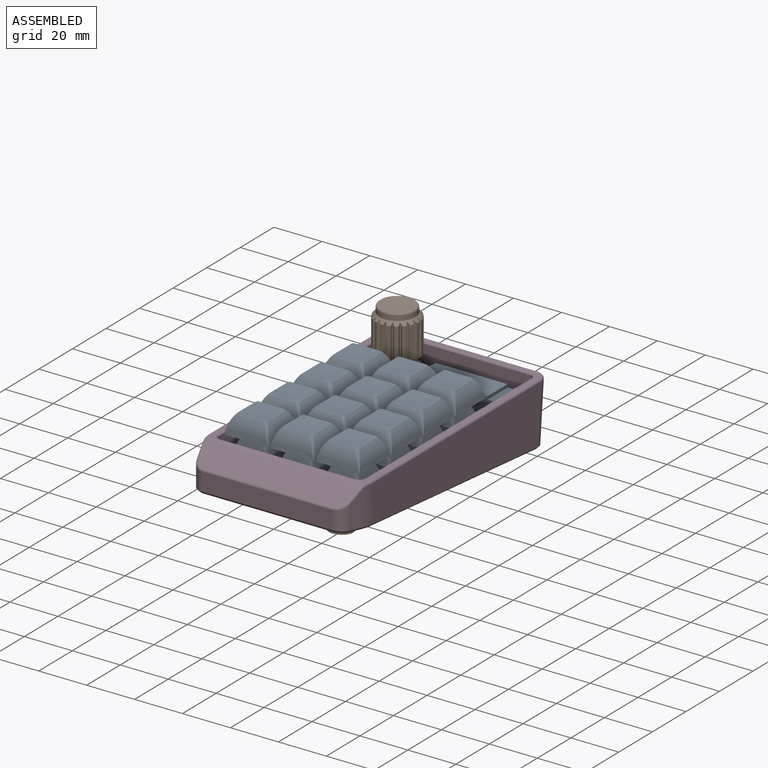
[diagram: assembled view]
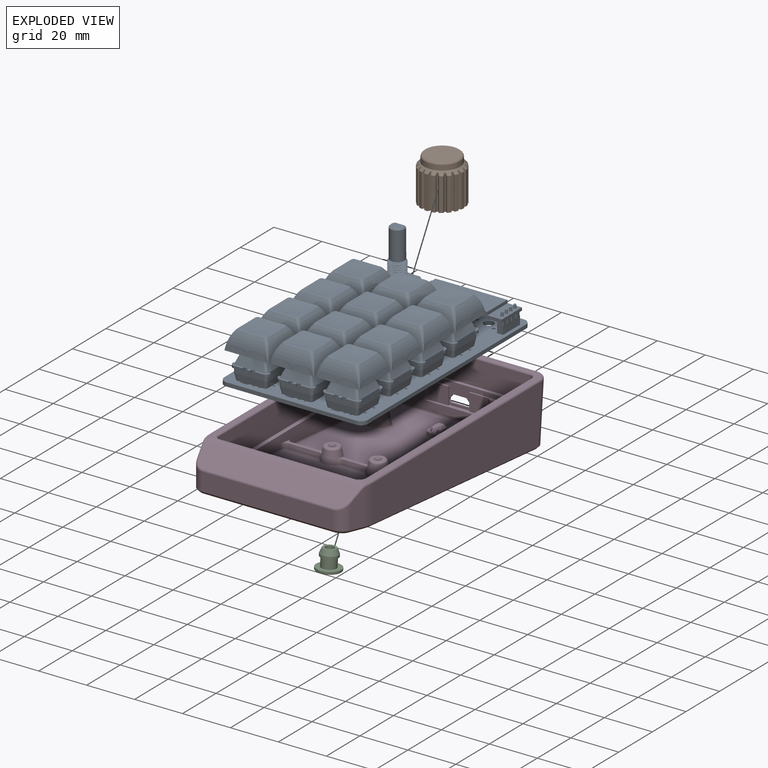
[diagram: exploded view]
GUIDED TOUR — FREECAD ASSEMBLY "keeby_cat_case_retro-hi_v1.0"

This assembly has 4 components, labeled P0..P3 below (a component is one placed body or linked part; the same part can appear more than once), held together by 0 modeled joints plus 3 derived contact edges. A joint is a constraint between two components; its type names the relative motion it leaves free:
  CONTACT — a derived adjacency edge — the two components touch in the source model (clearance under 2% of the assembly's diagonal); it is measured from the geometry, not a modeled constraint.
Axis/direction vectors are unit vectors and 'through' points are millimeter coordinates, both in the assembly's world frame.

MATES
  1. CONTACT "contact_0_1": P0 <-> P1, contact direction (-0.408, 0.890, 0.205) through (-16.53, 21.78, 14.70) mm (derived from contact, not a modeled constraint)
  2. CONTACT "contact_0_3": P0 <-> P3, contact direction (0.000, 0.000, -1.000) through (30.23, -64.06, 1.00) mm (derived from contact, not a modeled constraint)
  3. CONTACT "contact_2_3": P2 <-> P3, contact direction (-0.408, 0.890, 0.205) through (28.59, -75.23, -0.56) mm (derived from contact, not a modeled constraint)

ASSEMBLY ORDER
  1. P3 — the base component [order heuristic]
  2. P0 [order verified]
  3. P1 [order verified]
  4. P2 — core [order heuristic]
Order-tag legend:
  [order verified] — this step's position reverses a verified removal order: the component was checked to insert without passing through the ones already placed.
  [order heuristic] — the first 2 components form the assembly's core: parts whose collision-free extraction could not be verified, listed in mate-graph order.

Of the 4 components, 3 carry a construction recipe — the FreeCAD feature program (sketches with constraints, then the solid features that consume them) that regenerates the part from scratch, quoted from this document or from the linked companion document it references; the rest are supplied as boundary geometry only. The tour below walks the components in assembly order: each is shown spotlighted twice — in the assembled view, then in the exploded view, where a leader line traces a displaced component back to its assembled socket (components that stay in place when exploded have no leader line; saturated green if recipe-attached, orange if geometry-only; every other component desaturated gray) — followed by its recipe or geometry summary and the mates that hold it.
NOTE — this tour is split across 2 documents so each fits a 32k-token context. This is document 1: the component sections continue in the remaining 1 document, each repeating the header above.
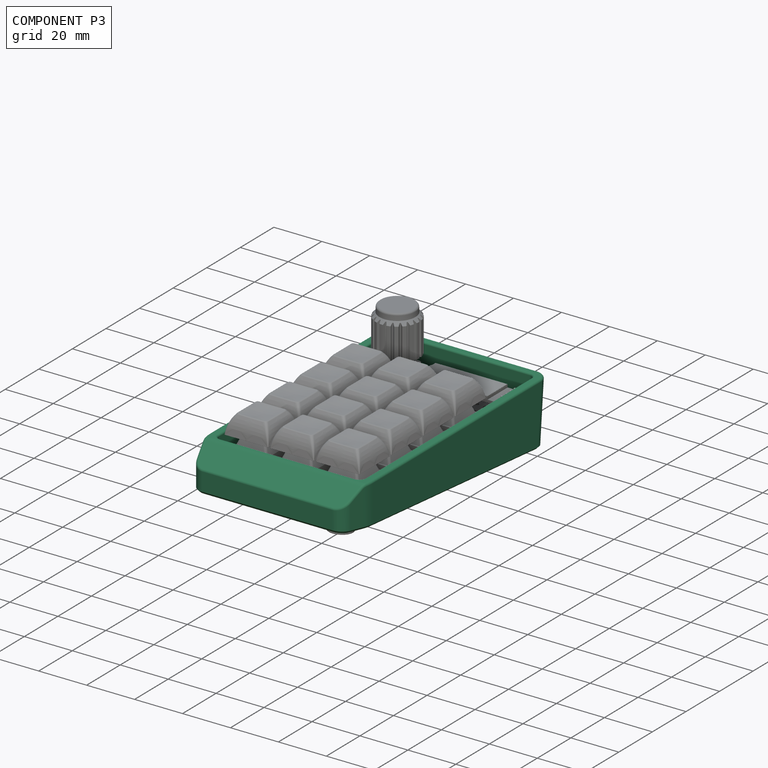
[diagram: component P3 — assembled]
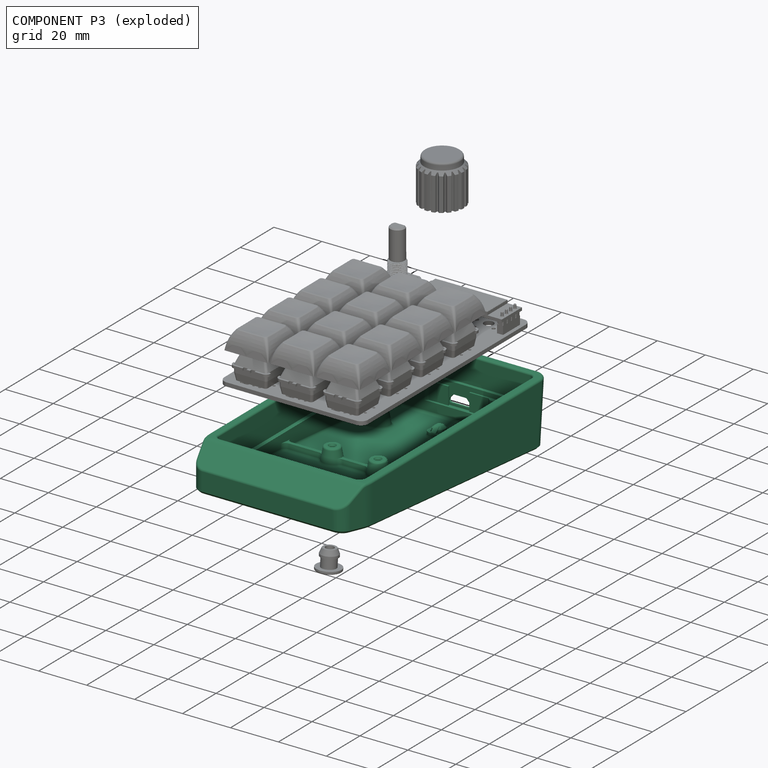
[diagram: component P3 — exploded]
COMPONENT P3 — recipe-attached ("Case", modeled in this document).
Held by: resting contact with P0 (derived edge); resting contact with P2 (derived edge).
Construction recipe (the document's own serialized feature program — sketch geometry with constraints, then the solid features built on it; lengths are millimeters unless a unit is written):

FEATURE [PartDesign::SubShapeBinder] Binder  label="PCB Top"
  BindCopyOnChange = 0
  BindMode = 0
  ClaimChildren = false
  Context = -> Assembly [Parts.Part.Body.Binder.]
  FillStyle = 0
  Fuse = false
  MakeFace = true
  OffsetFill = false
  OffsetIntersection = false
  OffsetJoinType = 0
  OffsetOpenResult = false
  PartialLoad = false
  Relative = true
  Support = -> [Link[Board_Geoms_61fa.Pcb_61fa.Face468]]
  TreeRank = 20
  _Version = 8
FEATURE [Sketcher::SketchObject] Sketch001  label="PCB Outline"
  ArcFitTolerance = 1e-06
  AttachmentSupport = -> [XY_Plane]
  ExternalGeometry = -> [Binder]
  FullyConstrained = true
  MapMode = 5
  Support = -> [XY_Plane]
  TreeRank = 19
  sketch-geometry (8):
    g0: LineSegment StartX=27 StartY=31.6315 StartZ=0 EndX=-27 EndY=31.6315 EndZ=0
    g1: LineSegment StartX=-30 StartY=28.6315 StartZ=0 EndX=-30 EndY=-65.3685 EndZ=0
    g2: LineSegment StartX=-27 StartY=-68.3685 StartZ=0 EndX=27 EndY=-68.3685 EndZ=0
    g3: LineSegment StartX=30 StartY=-65.3685 StartZ=0 EndX=30 EndY=28.6315 EndZ=0
    g4: ArcOfCircle CenterX=27 CenterY=-65.3685 CenterZ=0 NormalX=0 NormalY=0 NormalZ=1 AngleXU=0 Radius=3 StartAngle=4.71239 EndAngle=6.28319
    g5: ArcOfCircle CenterX=-27 CenterY=-65.3685 CenterZ=0 NormalX=0 NormalY=0 NormalZ=1 AngleXU=0 Radius=3 StartAngle=3.14159 EndAngle=4.71239
    g6: ArcOfCircle CenterX=-27 CenterY=28.6315 CenterZ=0 NormalX=0 NormalY=0 NormalZ=1 AngleXU=0 Radius=3 StartAngle=1.5708 EndAngle=3.14159
    g7: ArcOfCircle CenterX=27 CenterY=28.6315 CenterZ=0 NormalX=0 NormalY=0 NormalZ=1 AngleXU=0 Radius=3 StartAngle=-9e-16 EndAngle=1.5708
  constraints (16):
    c: Horizontal(g0)
    c: Horizontal(g2)
    c: Tangent(g2,g4) = -1.5708
    c: Tangent(g3,g4) = -1.5708
    c: Tangent(g1,g5) = -1.5708
    c: Tangent(g2,g5) = -1.5708
    c: Tangent(g0,g6) = -1.5708
    c: Tangent(g1,g6) = -1.5708
    c: Tangent(g0,g7) = -1.5708
    c: Tangent(g3,g7) = -1.5708
    c: Equal(g7,g6)
    c: Equal(g5,g4)
    c: Coincident(g-4,g0)
    c: Coincident(g-4,g3)
    c: Coincident(g-3,g2)
    c: Coincident(g1,g-3)
FEATURE [PartDesign::Pad] Pad  label="Simplified PCB"
  ClaimChildren = false
  Direction = (1,1,1)
  Fit = 0
  FitJoin = 0
  InnerFit = 0
  InnerFitJoin = 0
  InnerTaperAngle = 0
  InnerTaperAngleRev = 0
  Length = 1.6
  Length2 = 100
  Linearize = true
  NewSolid = false
  Profile = -> Sketch001
  Reversed = true
  Suppress = false
  TreeRank = 29
  Type = 0
  _ProfileBasedVersion = 1
  expr: Length = Spreadsheet.PCB_thickness
FEATURE [PartDesign::ShapeBinder] ShapeBinder
  Support = -> [Pad]
  TraceSupport = false
  TreeRank = 43
FEATURE [Part::SubShapeBinder] Import  label="Import(Pad)"
  BindCopyOnChange = 0
  BindMode = 0
  ClaimChildren = false
  Context = -> Assembly [Parts.Part.Body001.Import.]
  FillStyle = 0
  Fuse = false
  MakeFace = false
  OffsetFill = false
  OffsetIntersection = false
  OffsetJoinType = 0
  OffsetOpenResult = false
  PartialLoad = false
  Relative = true
  Support = -> [Body[Pad.]]
  TreeRank = 45
  _Version = 8
FEATURE [Sketcher::SketchObject] Sketch003  label="Plate Sketch"
  ArcFitTolerance = 1e-06
  AttachmentSupport = -> [ShapeBinder]
  ExternalGeometry = -> [Import]
  FullyConstrained = true
  MapMode = 5
  Support = -> [ShapeBinder]
  TreeRank = 44
  expr: Constraints[8] = Spreadsheet.Y_length
  sketch-geometry (5):
    g0: LineSegment StartX=-30 StartY=33.0627 StartZ=0 EndX=30 EndY=33.0627 EndZ=0
    g1: LineSegment StartX=30 StartY=33.0627 StartZ=0 EndX=30 EndY=-69.7998 EndZ=0
    g2: LineSegment StartX=30 StartY=-69.7998 StartZ=0 EndX=-30 EndY=-69.7998 EndZ=0
    g3: LineSegment StartX=-30 StartY=-69.7998 StartZ=0 EndX=-30 EndY=33.0627 EndZ=0
    g4: GeomPoint [constr] X=-30 Y=-18.3685 Z=0
  constraints (12):
    c: Coincident(g0,g1)
    c: Coincident(g1,g2)
    c: Coincident(g2,g3)
    c: Coincident(g3,g0)
    c: Horizontal(g0)
    c: Horizontal(g2)
    c: Vertical(g1)
    c: Vertical(g3)
    c: DistanceY(g3,g3) = 102.862
    c: Symmetric(g-3,g-3,g4)
    c: Symmetric(g0,g2,g4)
    c: PointOnObject(g-4,g1)
FEATURE [PartDesign::Pad] Pad001
  ClaimChildren = false
  Direction = (1,1,1)
  Fit = 0
  FitJoin = 0
  InnerFit = 0
  InnerFitJoin = 0
  InnerTaperAngle = 0
  InnerTaperAngleRev = 0
  Length = 4.8
  Length2 = 100
  Linearize = true
  NewSolid = false
  Profile = -> Sketch003
  Suppress = false
  TreeRank = 46
  Type = 0
  _ProfileBasedVersion = 1
  expr: Length = Spreadsheet.Plate_thk
FEATURE [PartDesign::Fillet] Fillet
  Base = -> Pad001 [Edge8,Edge5,Edge2,Edge1]
  BaseFeature = -> Pad001
  NewSolid = false
  Radius = 2
  SupportTransform = false
  Suppress = false
  TreeRank = 47
FEATURE [PartDesign::Chamfer] Chamfer
  Angle = 45
  Base = -> Fillet [Edge20,Edge11]
  BaseFeature = -> Fillet
  ChamferType = 0
  FlipDirection = false
  NewSolid = false
  Size = 0.8
  Size2 = 1
  SupportTransform = false
  Suppress = false
  TreeRank = 48
FEATURE [PartDesign::Body] Body001  label="Plate Simple"
  AutoGroupSolids = false
  ClaimAllChildren = false
  ExportMode = 0
  Group = -> [ShapeBinder,Sketch003,Import,Pad001,Fillet,Chamfer]
  Origin = -> Origin002
  Placement = pos=(0,0,0.1) rot=(0,0,1;0rad)
  Tip = -> Chamfer
  TreeRank = 41
  _ExportChildren = -> [ShapeBinder,Import,Pad001,Fillet,Chamfer]
  _GroupVersion = 1
FEATURE [Part::SubShapeBinder] Import002  label="Import002(Plate Sketch)"
  BindCopyOnChange = 0
  BindMode = 0
  ClaimChildren = false
  Context = -> Assembly [Parts.Part.Body002.Import002.]
  FillStyle = 0
  Fuse = false
  MakeFace = false
  OffsetFill = false
  OffsetIntersection = false
  OffsetJoinType = 0
  OffsetOpenResult = false
  PartialLoad = false
  Relative = true
  Support = -> [Body001[Sketch003.]]
  TreeRank = 63
  _Version = 8
FEATURE [Part::SubShapeBinder] Import003  label="Import003(Pcb_61fa)"
  BindCopyOnChange = 0
  BindMode = 0
  ClaimChildren = false
  Context = -> Assembly [Parts.Part.Body002.Import003.]
  FillStyle = 0
  Fuse = false
  MakeFace = false
  OffsetFill = false
  OffsetIntersection = false
  OffsetJoinType = 0
  OffsetOpenResult = false
  PartialLoad = false
  Relative = true
  Support = -> [Link[Board_Geoms_61fa.Pcb_61fa.]]
  TreeRank = 64
  _Version = 8
FEATURE [Sketcher::SketchObject] Sketch005
  ArcFitTolerance = 1e-06
  AttachmentSupport = -> [XY_Plane002]
  ExternalGeometry = -> [Import002]
  FullyConstrained = true
  MapMode = 5
  Support = -> [XY_Plane002]
  TreeRank = 67
  sketch-geometry (8):
    g0: LineSegment StartX=-28 StartY=33.0627 StartZ=0 EndX=28 EndY=33.0627 EndZ=0
    g1: LineSegment StartX=30 StartY=31.0627 StartZ=0 EndX=30 EndY=-67.7998 EndZ=0
    g2: LineSegment StartX=28 StartY=-69.7998 StartZ=0 EndX=-28 EndY=-69.7998 EndZ=0
    g3: LineSegment StartX=-30 StartY=-67.7998 StartZ=0 EndX=-30 EndY=31.0627 EndZ=0
    g4: ArcOfCircle CenterX=28 CenterY=31.0627 CenterZ=0 NormalX=0 NormalY=0 NormalZ=1 AngleXU=0 Radius=2 StartAngle=0 EndAngle=1.5708
    g5: ArcOfCircle CenterX=-28 CenterY=31.0627 CenterZ=0 NormalX=0 NormalY=0 NormalZ=1 AngleXU=0 Radius=2 StartAngle=1.5708 EndAngle=3.14159
    g6: ArcOfCircle CenterX=-28 CenterY=-67.7998 CenterZ=0 NormalX=0 NormalY=0 NormalZ=1 AngleXU=0 Radius=2 StartAngle=3.14159 EndAngle=4.71239
    g7: ArcOfCircle CenterX=28 CenterY=-67.7998 CenterZ=0 NormalX=0 NormalY=0 NormalZ=1 AngleXU=0 Radius=2 StartAngle=4.71239 EndAngle=6.28319
  constraints (20):
    c: Horizontal(g0)
    c: Horizontal(g2)
    c: Vertical(g1)
    c: Vertical(g3)
    c: Tangent(g0,g4) = 1.5708
    c: Tangent(g1,g4) = 1.5708
    c: Tangent(g0,g5) = 1.5708
    c: Tangent(g3,g5) = 1.5708
    c: Tangent(g2,g6) = 1.5708
    c: Tangent(g3,g6) = 1.5708
    c: Tangent(g2,g7) = 1.5708
    c: Tangent(g1,g7) = 1.5708
    c: Equal(g7,g6)
    c: Equal(g5,g4)
    c: Equal(g4,g7)
    c: PointOnObject(g3,g-3)
    c: PointOnObject(g1,g-4)
    c: Horizontal(g0,g-3)
    c: Horizontal(g2,g-3)
    c: Radius(g5) = 2
FEATURE [Part::SubShapeBinder] Import004  label="Import004(PCB Outline)"
  BindCopyOnChange = 0
  BindMode = 0
  ClaimChildren = false
  Context = -> Assembly [Parts.Part.Body002.Import004.]
  FillStyle = 0
  Fuse = false
  MakeFace = false
  OffsetFill = false
  OffsetIntersection = false
  OffsetJoinType = 0
  OffsetOpenResult = false
  PartialLoad = false
  Relative = true
  Support = -> [Body[Sketch001.]]
  TreeRank = 112
  _Version = 8
FEATURE [Sketcher::SketchObject] Sketch008  label="USB Thinning Sketch"
  ArcFitTolerance = 1e-06
  AttachmentOffset = pos=(0,0,-50) rot=(0,0,1;0rad)
  AttachmentSupport = -> [XZ_Plane002]
  FullyConstrained = true
  MapMode = 5
  Placement = pos=(0,50,1.11e-14) rot=(1,0,0;1.5708rad)
  Support = -> [XZ_Plane002]
  TreeRank = 119
  sketch-geometry (5):
    g0: LineSegment StartX=10 StartY=-2.3 StartZ=0 EndX=-10 EndY=-2.3 EndZ=0
    g1: LineSegment StartX=-10 StartY=-2.3 StartZ=0 EndX=-10 EndY=-10.3 EndZ=0
    g2: LineSegment StartX=-10 StartY=-10.3 StartZ=0 EndX=10 EndY=-10.3 EndZ=0
    g3: LineSegment StartX=10 StartY=-10.3 StartZ=0 EndX=10 EndY=-2.3 EndZ=0
    g4: GeomPoint [constr] X=0 Y=-6.3 Z=0
  constraints (13):
    c: Coincident(g0,g1)
    c: Coincident(g1,g2)
    c: Coincident(g2,g3)
    c: Coincident(g3,g0)
    c: Horizontal(g0)
    c: Horizontal(g2)
    c: Vertical(g1)
    c: Vertical(g3)
    c: PointOnObject(g4,g-2)
    c: Symmetric(g0,g2,g4)
    c: DistanceY(g4,g-1) = 6.3
    c: DistanceY(g1,g1) = 8
    c: DistanceX(g0,g0) = 20
FEATURE [Sketcher::SketchObject] Sketch009  label="USB Cut"
  ArcFitTolerance = 1e-06
  AttachmentSupport = -> [Sketch008]
  ExternalGeometry = -> [Sketch008]
  FullyConstrained = true
  MapMode = 5
  Placement = pos=(0,50,1.11e-14) rot=(1,0,0;1.5708rad)
  Support = -> [Sketch008]
  TreeRank = 125
  sketch-geometry (12):
    g0: LineSegment [constr] StartX=4.375 StartY=-4.6 StartZ=0 EndX=-4.375 EndY=-4.6 EndZ=0
    g1: LineSegment [constr] StartX=-4.375 StartY=-4.6 StartZ=0 EndX=-4.375 EndY=-8 EndZ=0
    g2: LineSegment [constr] StartX=-4.375 StartY=-8 StartZ=0 EndX=4.375 EndY=-8 EndZ=0
    g3: LineSegment [constr] StartX=4.375 StartY=-8 StartZ=0 EndX=4.375 EndY=-4.6 EndZ=0
    g4: GeomPoint [constr] X=5e-16 Y=-6.3 Z=0
    g5: LineSegment StartX=2.7 StartY=-4.6 StartZ=0 EndX=-2.7 EndY=-4.6 EndZ=0
    g6: LineSegment StartX=-4.375 StartY=-6.5 StartZ=0 EndX=-4.375 EndY=-8 EndZ=0
    g7: LineSegment StartX=-4.375 StartY=-8 StartZ=0 EndX=4.375 EndY=-8 EndZ=0
    g8: LineSegment StartX=4.375 StartY=-8 StartZ=0 EndX=4.375 EndY=-6.5 EndZ=0
    g9: LineSegment StartX=4.375 StartY=-6.5 StartZ=0 EndX=2.7 EndY=-4.6 EndZ=0
    g10: LineSegment StartX=-2.7 StartY=-4.6 StartZ=0 EndX=-4.375 EndY=-6.5 EndZ=0
    g11: GeomPoint [constr] X=0 Y=-4.6 Z=0
  constraints (32):
    c: Coincident(g0,g1)
    c: Coincident(g1,g2)
    c: Coincident(g2,g3)
    c: Coincident(g3,g0)
    c: Horizontal(g0)
    c: Horizontal(g2)
    c: Vertical(g1)
    c: Vertical(g3)
    c: Symmetric(g-3,g-4,g4)
    c: Symmetric(g0,g2,g4)
    c: Coincident(g6,g7)
    c: Coincident(g7,g8)
    c: Horizontal(g5)
    c: Horizontal(g7)
    c: Vertical(g6)
    c: Vertical(g8)
    c: Coincident(g5,g9)
    c: Coincident(g8,g9)
    c: Coincident(g5,g10)
    c: Coincident(g6,g10)
    c: PointOnObject(g11,g-2)
    c: Symmetric(g5,g5,g11)
    c: PointOnObject(g2,g8)
    c: PointOnObject(g1,g6)
    c: PointOnObject(g2,g7)
    c: Horizontal(g6,g8)
    c: DistanceY(g6,g6) = 1.5
    c: DistanceY(g1,g1) = 3.4
    c: DistanceX(g7,g7) = 8.75
    c: DistanceX(g5,g5) = 5.4
    c: Angle(g9,g3) = 2.41905
    c: PointOnObject(g5,g0)
FEATURE [PartDesign::Pad] Pad005
  ClaimChildren = false
  Direction = (1,1,1)
  Fit = 0
  FitJoin = 0
  InnerFit = 0
  InnerFitJoin = 0
  InnerTaperAngle = 0
  InnerTaperAngleRev = 0
  Length = 68
  Length2 = 100
  Linearize = true
  Midplane = true
  NewSolid = false
  Profile = -> Import006
  Suppress = false
  TreeRank = 146
  Type = 0
  _ProfileBasedVersion = 1
  expr: Length = Spreadsheet.X_width + Spreadsheet.bezel_width * 2
FEATURE [PartDesign::Pocket] Pocket
  BaseFeature = -> Pad005
  ClaimChildren = false
  Fit = 0.5
  FitJoin = 0
  InnerFit = 0
  InnerFitJoin = 0
  InnerTaperAngle = 0
  InnerTaperAngleRev = 0
  Length = 5
  Length2 = 100
  Linearize = true
  NewSolid = false
  Profile = -> Sketch005
  Reversed = true
  Suppress = false
  TreeRank = 68
  Type = 1
  _ProfileBasedVersion = 1
FEATURE [PartDesign::Chamfer] Chamfer001  label="Chamfer Front-Sides"
  Angle = 45
  Base = -> Pocket [Edge18,Edge22]
  BaseFeature = -> Pocket
  ChamferType = 1
  FlipDirection = false
  NewSolid = false
  Size = 12
  Size2 = 3
  SupportTransform = false
  Suppress = false
  TreeRank = 75
FEATURE [PartDesign::Fillet] Fillet005  label="Fillet Front Sides"
  Base = -> Chamfer001 [Edge26,Edge15]
  BaseFeature = -> Chamfer001
  NewSolid = false
  Radius = 20
  SupportTransform = false
  Suppress = false
  TreeRank = 76
FEATURE [PartDesign::Fillet] Fillet001  label="Fillet Vert 4 Corners"
  Base = -> Fillet005 [Edge51,Edge53,Edge22,Edge16]
  BaseFeature = -> Fillet005
  NewSolid = false
  Radius = 5
  SupportTransform = false
  Suppress = false
  TreeRank = 69
FEATURE [PartDesign::Fillet] Fillet003  label="Fillet Outer Top Edge"
  Base = -> Fillet001 [Edge63]
  BaseFeature = -> Fillet001
  NewSolid = false
  Radius = 1
  SupportTransform = false
  Suppress = false
  TreeRank = 73
FEATURE [PartDesign::Fillet] Fillet004  label="Fillet Inner Top Edge"
  Base = -> Fillet003 [Edge13]
  BaseFeature = -> Fillet003
  NewSolid = false
  Radius = 0.8
  SupportTransform = false
  Suppress = false
  TreeRank = 77
FEATURE [Part::SubShapeBinder] Import005  label="Import005(Blue Pill PCB)"
  BindCopyOnChange = 0
  BindMode = 0
  ClaimChildren = false
  Context = -> Assembly [Parts.Part.Body002.Import005.]
  FillStyle = 0
  Fuse = false
  MakeFace = false
  OffsetFill = false
  OffsetIntersection = false
  OffsetJoinType = 0
  OffsetOpenResult = false
  PartialLoad = false
  Relative = true
  Support = -> [Binder001]
  TreeRank = 151
  _Version = 8
FEATURE [PartDesign::Pocket] Pocket009  label="Pocket for PCB 2"
  BaseFeature = -> Fillet004
  ClaimChildren = false
  Fit = 0.5
  FitJoin = 0
  InnerFit = 0
  InnerFitJoin = 0
  InnerTaperAngle = 0
  InnerTaperAngleRev = 0
  Length = 1.8
  Length2 = 100
  Linearize = true
  NewSolid = false
  Profile = -> Import004
  Refine = true
  Suppress = false
  TreeRank = 152
  Type = 0
  _ProfileBasedVersion = 1
FEATURE [Part::SubShapeBinder] Import008  label="Import008(Sketch)"
  BindCopyOnChange = 0
  BindMode = 0
  ClaimChildren = false
  Context = -> Assembly [Parts.Part.Body002.Import008.]
  FillStyle = 0
  Fuse = false
  MakeFace = false
  OffsetFill = false
  OffsetIntersection = false
  OffsetJoinType = 0
  OffsetOpenResult = false
  PartialLoad = false
  Relative = true
  Support = -> [Body[Sketch.]]
  TreeRank = 156
  _Version = 8
FEATURE [Part::SubShapeBinder] Import009  label="Import009(Inner)"
  BindCopyOnChange = 0
  BindMode = 0
  ClaimChildren = false
  Context = -> Assembly [Parts.Part.Body003.Import009.]
  FillStyle = 0
  Fuse = false
  MakeFace = false
  OffsetFill = false
  OffsetIntersection = false
  OffsetJoinType = 0
  OffsetOpenResult = false
  PartialLoad = false
  Relative = true
  Support = -> [Body002[Export004.]]
  TreeRank = 284
  _Version = 8
FEATURE [PartDesign::Pad] Pad009
  ClaimChildren = false
  Direction = (1,1,1)
  Fit = -0.3
  FitJoin = 0
  InnerFit = 0
  InnerFitJoin = 0
  InnerTaperAngle = 0
  InnerTaperAngleRev = 0
  Length = 4.2
  Length2 = 100
  Linearize = true
  NewSolid = false
  Profile = -> Import009
  Suppress = false
  TreeRank = 285
  Type = 0
  _ProfileBasedVersion = 1
FEATURE [PartDesign::Pad] Pad010
  BaseFeature = -> Pad009
  ClaimChildren = false
  Direction = (1,1,1)
  Fit = -0.3
  FitJoin = 0
  InnerFit = 0
  InnerFitJoin = 0
  InnerTaperAngle = 0
  InnerTaperAngleRev = 0
  Length = 1
  Length2 = 100
  Linearize = true
  NewSolid = false
  Profile = -> Import009
  Reversed = true
  Suppress = false
  TreeRank = 286
  Type = 0
  _ProfileBasedVersion = 1
FEATURE [Sketcher::SketchObject] Sketch019
  ArcFitTolerance = 1e-06
  AttachmentSupport = -> [Pad010]
  ExternalGeometry = -> [Import009]
  FullyConstrained = true
  MapMode = 5
  Placement = pos=(-1e-16,-0.597245,-6.82655) rot=(-1,0,0;0.087266rad)
  Support = -> [Pad010]
  TreeRank = 287
  sketch-geometry (5):
    g0: LineSegment StartX=4 StartY=19.7108 StartZ=0 EndX=2 EndY=19.7108 EndZ=0
    g1: LineSegment StartX=2 StartY=19.7108 StartZ=0 EndX=2 EndY=12.7108 EndZ=0
    g2: LineSegment StartX=2 StartY=12.7108 StartZ=0 EndX=4 EndY=12.7108 EndZ=0
    g3: LineSegment StartX=4 StartY=12.7108 StartZ=0 EndX=4 EndY=19.7108 EndZ=0
    g4: GeomPoint [constr] X=2 Y=16.2108 Z=0
  constraints (13):
    c: Coincident(g0,g1)
    c: Coincident(g1,g2)
    c: Coincident(g2,g3)
    c: Coincident(g3,g0)
    c: Horizontal(g0)
    c: Horizontal(g2)
    c: Vertical(g1)
    c: Vertical(g3)
    c: PointOnObject(g-4,g3)
    c: DistanceY(g1,g1) = 7
    c: Symmetric(g0,g1,g4)
    c: Symmetric(g-3,g-4,g4)
    c: DistanceY(g-4,g0) = 1
FEATURE [PartDesign::SubShapeBinder] Import010  label="Import010(Pad Button Wall Interior)"
  BindCopyOnChange = 0
  BindMode = 0
  ClaimChildren = false
  Context = -> Assembly [Parts.Part.Body003.Import010.]
  FillStyle = 0
  Fuse = false
  MakeFace = false
  OffsetFill = false
  OffsetIntersection = false
  OffsetJoinType = 0
  OffsetOpenResult = false
  PartialLoad = false
  Relative = true
  Support = -> [Body002[Fillet011.Face81]]
  TreeRank = 289
  _Version = 8
FEATURE [PartDesign::Pad] Pad011
  BaseFeature = -> Pad010
  ClaimChildren = false
  Direction = (1,1,1)
  Fit = 0
  FitJoin = 0
  InnerFit = 0
  InnerFitJoin = 0
  InnerTaperAngle = 0
  InnerTaperAngleRev = 0
  Length = 10
  Length2 = 100
  Linearize = true
  NewSolid = false
  Profile = -> Sketch019
  Suppress = false
  TreeRank = 288
  Type = 3
  UpToFace = -> Import010
  _ProfileBasedVersion = 1
FEATURE [PartDesign::Chamfer] Chamfer005
  Angle = 45
  Base = -> Pad011 [Edge32,Edge40]
  BaseFeature = -> Pad011
  ChamferType = 0
  FlipDirection = false
  NewSolid = false
  Size = 1
  Size2 = 1
  SupportTransform = false
  Suppress = false
  TreeRank = 290
FEATURE [PartDesign::Chamfer] Chamfer007
  Angle = 45
  Base = -> Chamfer005 [Edge27,Edge75]
  BaseFeature = -> Chamfer005
  ChamferType = 0
  FlipDirection = false
  NewSolid = false
  Size = 2
  Size2 = 1
  SupportTransform = false
  Suppress = false
  TreeRank = 292
FEATURE [PartDesign::Chamfer] Chamfer006
  Angle = 45
  Base = -> Chamfer007 [Edge71]
  BaseFeature = -> Chamfer007
  ChamferType = 0
  FlipDirection = false
  NewSolid = false
  Size = 0.5
  Size2 = 1
  SupportTransform = false
  Suppress = false
  TreeRank = 291
FEATURE [PartDesign::Body] Body003  label="Bootloader Button"
  AutoGroupSolids = false
  ClaimAllChildren = false
  ExportMode = 0
  Group = -> [Import009,Pad009,Pad010,Sketch019,Pad011,Chamfer005,Chamfer007,Chamfer006,Import010]
  Origin = -> Origin004
  Tip = -> Chamfer006
  TreeRank = 283
  _ExportChildren = -> [Pad009,Pad010,Pad011,Chamfer005,Chamfer007,Chamfer006,Import010]
  _GroupVersion = 1
FEATURE [PartDesign::Body] Body  label="PCB Ref + Master"
  AutoGroupSolids = false
  ClaimAllChildren = false
  ExportMode = 0
  Group = -> [Sketch,Sketch001,Binder,Pad,Export]
  Origin = -> Origin001
  Tip = -> Pad
  TreeRank = 14
  _ExportChildren = -> [Sketch,Binder,Pad]
  _GroupVersion = 1
FEATURE [Sketcher::SketchObject] Sketch  label="Master Sketch"
  ArcFitTolerance = 1e-06
  AttachmentSupport = -> [YZ_Plane]
  Exports = -> [Export]
  ExternalGeometry = -> [Pad]
  FullyConstrained = true
  MapMode = 5
  Placement = pos=(0,0,0) rot=(0.57735,0.57735,0.57735;2.0944rad)
  Support = -> [YZ_Plane]
  TreeRank = 15
  expr: Constraints[20] = Spreadsheet.floor_thk
  expr: Constraints[23] = Spreadsheet.Y_length
  expr: Constraints[35] = Spreadsheet.stopper_height
  expr: Constraints[36] = 0.4 * 2
  expr: Constraints[42] = 3 + 0.15
  expr: Constraints[49] = Spreadsheet.bezel_width
  sketch-geometry (19):
    g0: LineSegment StartX=37.0627 StartY=11 StartZ=0 EndX=-71.2998 EndY=11 EndZ=0
    g1: LineSegment StartX=-73.6837 StartY=10.2472 StartZ=0 EndX=-82.5889 EndY=4 EndZ=0
    g2: LineSegment StartX=-82.5889 StartY=4 StartZ=0 EndX=-82.5889 EndY=-5.07383 EndZ=0
    g3: LineSegment StartX=-82.5889 StartY=-5.07383 StartZ=0 EndX=34.7582 EndY=-15.3404 EndZ=0
    g4: LineSegment StartX=34.7582 StartY=-15.3404 StartZ=0 EndX=37.0627 EndY=11 EndZ=0
    g5: LineSegment StartX=-80.2976 StartY=-5.27429 StartZ=0 EndX=-79.5655 EndY=3.09374 EndZ=0
    g6: LineSegment StartX=-79.5655 StartY=3.09374 StartZ=0 EndX=-70.5998 EndY=2.30934 EndZ=0
    g7: LineSegment StartX=-70.5998 StartY=2.30934 StartZ=0 EndX=-71.3319 EndY=-6.05869 EndZ=0
    g8: LineSegment StartX=-75.8148 StartY=-5.66649 StartZ=0 EndX=-75.0827 EndY=2.70154 EndZ=0
    g9: LineSegment StartX=-68.3685 StartY=-1.6 StartZ=0 EndX=-68.3685 EndY=-5.11337 EndZ=0
    g10: LineSegment StartX=-68.3685 StartY=-5.11337 StartZ=0 EndX=31.9872 EndY=-13.8934 EndZ=0
    g11: LineSegment StartX=-69.7998 StartY=-1.6 StartZ=0 EndX=33.0627 EndY=-1.6 EndZ=0
    g12: GeomPoint [constr] X=-18.3685 Y=-1.6 Z=0
    g13: LineSegment StartX=-69.7998 StartY=-1.6 StartZ=0 EndX=-69.7998 EndY=11 EndZ=0
    g14: ArcOfCircle CenterX=-71.2998 CenterY=6.84893 CenterZ=0 NormalX=0 NormalY=0 NormalZ=1 AngleXU=0 Radius=4.15107 StartAngle=1.5708 EndAngle=2.18254
    g15: LineSegment StartX=33.0627 StartY=-1.6 StartZ=0 EndX=33.0627 EndY=11 EndZ=0
    g16: LineSegment StartX=-72.6768 StartY=-5.94103 StartZ=0 EndX=-72.3281 EndY=-1.95625 EndZ=0
    g17: LineSegment StartX=-72.3281 StartY=-1.95625 StartZ=0 EndX=-70.9833 EndY=-2.07391 EndZ=0
    g18: LineSegment StartX=33.0627 StartY=-1.6 StartZ=0 EndX=31.9872 EndY=-13.8934 EndZ=0
  constraints (56):
    c: Horizontal(g0)
    c: Coincident(g1,g2)
    c: Coincident(g2,g3)
    c: Coincident(g3,g4)
    c: Coincident(g4,g0)
    c: Angle(g3,g-1) = 0.0872665
    c: PointOnObject(g5,g3)
    c: Perpendicular(g5,g3)
    c: Coincident(g6,g5)
    c: Coincident(g7,g6)
    c: PointOnObject(g7,g3)
    c: Perpendicular(g7,g6)
    c: Perpendicular(g3,g7)
    c: Distance(g5,g7) = 9
    c: PointOnObject(g8,g3)
    c: Symmetric(g5,g6,g8)
    c: Perpendicular(g6,g8)
    c: Vertical(g9)
    c: Coincident(g9,g10)
    c: Parallel(g3,g10)
    c: Distance(g9,g3) = 1.2
    c: Horizontal(g11)
    c: Symmetric(g11,g11,g12)
    c: DistanceX(g11,g11) = 102.862
    c: Coincident(g13,g11)
    c: PointOnObject(g13,g0)
    c: Vertical(g13)
    c: Tangent(g0,g14) = -1.5708
    c: Tangent(g1,g14) = -1.5708
    c: Radius(g14) = 4.15107
    c: DistanceY(g-1,g0) = 11
    c: Coincident(g15,g11)
    c: PointOnObject(g15,g0)
    c: Vertical(g15)
    c: DistanceX(g0,g13) = 1.5
    c: Distance(g8) = 8.4
    c: DistanceX(g6,g13) = 0.8
    c: PointOnObject(g16,g3)
    c: Coincident(g16,g17)
    c: PointOnObject(g17,g7)
    c: Perpendicular(g16,g17)
    c: Perpendicular(g3,g16)
    c: Distance(g16,g8) = 3.15
    c: Distance(g16) = 4
    c: Distance(g0,g1) = 2.5
    c: Distance(g8,g2) = 6.8
    c: DistanceY(g1,g0) = 7
    c: Distance(g9,g10) = 3.5
    c: Perpendicular(g3,g4)
    c: DistanceX(g15,g0) = 4
    c: Vertical(g2)
    c: Coincident(g18,g11)
    c: Coincident(g18,g10)
    c: Perpendicular(g18,g10)
    c: Symmetric(g-3,g9,g12)
    c: Coincident(g9,g-4)
FEATURE [PartDesign::Body] Body002  label="Case Shell"
  AutoGroupSolids = false
  ClaimAllChildren = false
  ExportMode = 0
  Group = -> [DatumLine,DatumPoint,DatumPlane,DatumPlane001,DatumPlane002,Import002,Import003,Import004,Import005,Pad005,Sketch005,Pocket,Chamfer001,Fillet005,Fillet001,Fillet003,Fillet004,Pocket009,Pocket008,Sketch008,Pocket005,Sketch013,Pocket007,Pocket004,Draft,Draft001,Fillet006,Sketch009,Fillet007,Sketch012,Pad004,Draft002,Import008,Sketch014,Pocket010,Pad006,Pocket011,Sketch015,Groove,Chamfer004,Mirrored,+23 more]
  Origin = -> Origin003
  Tip = -> Boolean
  TreeRank = 60
  _ExportChildren = -> [DatumLine,DatumPoint,DatumPlane,DatumPlane001,DatumPlane002,Import002,Import003,Import005,Pad005,Pocket,Chamfer001,Fillet005,Fillet001,Fillet003,Fillet004,Pocket009,Pocket008,Pocket005,Pocket007,Pocket004,Draft,Draft001,Fillet006,Fillet007,Pad004,Draft002,Import008,Sketch014,Pocket010,Pad006,Pocket011,Groove,Chamfer004,Mirrored,Chamfer009,Fillet012,Pad007,Chamfer002,Fillet008,Fillet009,Draft003,+9 more]
  _GroupVersion = 1
FEATURE [PartDesign::Pocket] Pocket004  label="USB Thinning Pocket"
  BaseFeature = -> Pocket007
  ClaimChildren = false
  Fit = 0
  FitJoin = 0
  InnerFit = 0
  InnerFitJoin = 0
  InnerTaperAngle = 0
  InnerTaperAngleRev = 0
  Length = 0
  Length2 = 100
  Linearize = true
  NewSolid = false
  Offset = 0.8
  Profile = -> Sketch008
  Suppress = false
  TreeRank = 120
  Type = 3
  UpToFace = -> Pocket007 [Face79]
  _ProfileBasedVersion = 1
  expr: Offset = 0.4 * 2
FEATURE [PartDesign::Draft] Draft  label="USB Top-Bottom Draft"
  Angle = 45
  Base = -> Pocket004 [Face56,Face54]
  BaseFeature = -> Pocket004
  NeutralPlane = -> Pocket004 [Face76]
  NewSolid = false
  Reversed = true
  SupportTransform = false
  Suppress = false
  TreeRank = 121
FEATURE [PartDesign::Draft] Draft001  label="USB Sides Draft"
  Angle = 36
  Base = -> Draft [Face55,Face53]
  BaseFeature = -> Draft
  NeutralPlane = -> Draft [Face37]
  NewSolid = false
  Reversed = true
  SupportTransform = false
  Suppress = false
  TreeRank = 123
FEATURE [PartDesign::Fillet] Fillet006  label="USB inset fillet"
  Base = -> Draft001 [Edge159,Edge157,Edge160,Edge162]
  BaseFeature = -> Draft001
  NewSolid = false
  Radius = 2
  SupportTransform = false
  Suppress = false
  TreeRank = 124
FEATURE [PartDesign::Pocket] Pocket005  label="USB Port Hole"
  BaseFeature = -> Pocket008
  ClaimChildren = false
  Fit = 0
  FitJoin = 0
  InnerFit = 0
  InnerFitJoin = 0
  InnerTaperAngle = 0
  InnerTaperAngleRev = 0
  Length = 30
  Length2 = 100
  Linearize = true
  NewSolid = false
  Profile = -> Sketch009
  Reversed = true
  Suppress = false
  TreeRank = 126
  Type = 0
  _ProfileBasedVersion = 1
FEATURE [PartDesign::Fillet] Fillet007  label="USB Port Fillet"
  Base = -> Fillet006 [Edge94,Edge91,Edge93,Edge100,Edge98,Edge96]
  BaseFeature = -> Fillet006
  NewSolid = false
  Radius = 0.8
  SupportTransform = false
  Suppress = false
  TreeRank = 127
FEATURE [PartDesign::Plane] DatumPlane001  label="Inside Floor"
  AttachmentOffset = pos=(0,0,1.2) rot=(0,0,1;0rad)
  AttachmentSupport = -> [DatumPlane]
  Length = 68
  MapMode = 5
  MinimumLength = 10
  MinimumWidth = 10
  Placement = pos=(6.66667,-43.3686,-7.30058) rot=(0,0.043619,0.999048;3.14159rad)
  ResizeMode = 0
  Support = -> [DatumPlane]
  TreeRank = 135
  Width = 121.391
  expr: AttachmentOffset.Base.z = Spreadsheet.floor_thk
FEATURE [Sketcher::SketchObject] Sketch012  label="Screw Bosses Sketch"
  ArcFitTolerance = 1e-06
  AttachmentSupport = -> [Pocket007]
  ExternalGeometry = -> [Import003]
  FullyConstrained = true
  MapMode = 5
  Placement = pos=(0,0,-1.8) rot=(0,0,1;0rad)
  Support = -> [Pocket007]
  TreeRank = 136
  expr: Constraints[19] = Spreadsheet.screw_hole_dia_plastic
  sketch-geometry (10):
    g0: Circle CenterX=-9.525 CenterY=-30.2745 CenterZ=0 NormalX=0 NormalY=0 NormalZ=1 AngleXU=0 Radius=1.15
    g1: Circle CenterX=9.525 CenterY=-30.2745 CenterZ=0 NormalX=0 NormalY=0 NormalZ=1 AngleXU=0 Radius=1.15
    g2: Circle CenterX=19.05 CenterY=10.2067 CenterZ=0 NormalX=0 NormalY=0 NormalZ=1 AngleXU=0 Radius=1.15
    g3: Circle CenterX=-19.05 CenterY=10.2067 CenterZ=0 NormalX=0 NormalY=0 NormalZ=1 AngleXU=0 Radius=1.15
    g4: Circle CenterX=9.525 CenterY=-30.2745 CenterZ=0 NormalX=0 NormalY=0 NormalZ=1 AngleXU=0 Radius=3.15
    g5: Circle CenterX=-9.525 CenterY=-30.2745 CenterZ=0 NormalX=0 NormalY=0 NormalZ=1 AngleXU=0 Radius=3.15
    g6: Circle CenterX=-19.05 CenterY=10.2067 CenterZ=0 NormalX=0 NormalY=0 NormalZ=1 AngleXU=0 Radius=3.15
    g7: Circle CenterX=19.05 CenterY=10.2067 CenterZ=0 NormalX=0 NormalY=0 NormalZ=1 AngleXU=0 Radius=3.15
    g8: GeomPoint [constr] X=19.05 Y=9.05671 Z=0
    g9: GeomPoint [constr] X=19.05 Y=7.05671 Z=0
  constraints (20):
    c: Equal(g3,g2)
    c: Equal(g1,g0)
    c: Equal(g0,g3)
    c: Coincident(g-6,g3)
    c: Coincident(g2,g-5)
    c: Coincident(g1,g-4)
    c: Coincident(g0,g-3)
    c: Coincident(g4,g1)
    c: Coincident(g5,g0)
    c: Coincident(g6,g3)
    c: Coincident(g7,g2)
    c: Equal(g7,g6)
    c: Equal(g5,g4)
    c: Equal(g5,g6)
    c: PointOnObject(g8,g2)
    c: PointOnObject(g9,g7)
    c: Vertical(g8,g9)
    c: Vertical(g8,g2)
    c: DistanceY(g9,g8) = 2
    c: Diameter(g2) = 2.3
FEATURE [PartDesign::Pad] Pad004  label="Screw Bosses Pad"
  BaseFeature = -> Fillet007
  ClaimChildren = false
  Direction = (1,1,1)
  Fit = 0
  FitJoin = 0
  InnerFit = 0
  InnerFitJoin = 0
  InnerTaperAngle = 0
  InnerTaperAngleRev = 0
  Length = 10
  Length2 = 100
  Linearize = true
  NewSolid = false
  Profile = -> Sketch012
  Suppress = false
  TreeRank = 137
  Type = 3
  UpToFace = -> DatumPlane001
  _ProfileBasedVersion = 1
FEATURE [PartDesign::Draft] Draft002  label="Screw Boss Draft"
  Angle = 10
  Base = -> Pad004 [Face97,Face96,Face95,Face94]
  BaseFeature = -> Pad004
  NeutralPlane = -> Pad004 [Face102]
  NewSolid = false
  SupportTransform = false
  Suppress = false
  TreeRank = 138
FEATURE [Sketcher::SketchObject] Sketch013  label="MCU Relief Sketch"
  ArcFitTolerance = 1e-06
  AttachmentOffset = pos=(0,0,0) rot=(0,0,1;3.14159rad)
  AttachmentSupport = -> [Import002]
  ExternalGeometry = -> [Pocket008]
  FullyConstrained = true
  MapMode = 2
  Placement = pos=(0,0,0) rot=(0,0,1;3.14159rad)
  Support = -> [Import002]
  TreeRank = 139
  sketch-geometry (9):
    g0: LineSegment StartX=-4.4 StartY=-32.1315 StartZ=0 EndX=4.4 EndY=-32.1315 EndZ=0
    g1: LineSegment StartX=4.4 StartY=-32.1315 StartZ=0 EndX=4.4 EndY=-31.4315 EndZ=0
    g2: LineSegment StartX=-4.4 StartY=-31.4315 StartZ=0 EndX=-4.4 EndY=-32.1315 EndZ=0
    g3: LineSegment StartX=-12.5 StartY=-31.4315 StartZ=0 EndX=-4.4 EndY=-31.4315 EndZ=0
    g4: LineSegment StartX=12.5 StartY=-31.4315 StartZ=0 EndX=12.5 EndY=-30.4315 EndZ=0
    g5: LineSegment StartX=12.5 StartY=-30.4315 StartZ=0 EndX=-12.5 EndY=-30.4315 EndZ=0
    g6: LineSegment StartX=-12.5 StartY=-30.4315 StartZ=0 EndX=-12.5 EndY=-31.4315 EndZ=0
    g7: LineSegment StartX=4.4 StartY=-31.4315 StartZ=0 EndX=12.5 EndY=-31.4315 EndZ=0
    g8: GeomPoint [constr] X=0 Y=-30.4315 Z=0
  constraints (24):
    c: Coincident(g0,g1)
    c: Coincident(g2,g0)
    c: Horizontal(g0)
    c: Vertical(g1)
    c: Vertical(g2)
    c: Coincident(g7,g4)
    c: Coincident(g4,g5)
    c: Coincident(g5,g6)
    c: Coincident(g6,g3)
    c: Horizontal(g3)
    c: Horizontal(g5)
    c: Vertical(g4)
    c: Vertical(g6)
    c: Coincident(g3,g2)
    c: Coincident(g7,g1)
    c: Tangent(g3,g7)
    c: PointOnObject(g8,g-2)
    c: Symmetric(g4,g5,g8)
    c: DistanceX(g3,g4) = 25
    c: Equal(g3,g7)
    c: DistanceX(g0,g0) = 8.8
    c: DistanceY(g4,g4) = 1
    c: DistanceY(g0,g4) = 1.7
    c: PointOnObject(g5,g-3)
FEATURE [PartDesign::Pocket] Pocket007  label="MCU Relief Cut"
  BaseFeature = -> Pocket005
  ClaimChildren = false
  Fit = 0
  FitJoin = 0
  InnerFit = 0
  InnerFitJoin = 0
  InnerTaperAngle = 0
  InnerTaperAngleRev = 0
  Length = 0
  Length2 = 100
  Linearize = true
  NewSolid = false
  Offset = 1
  Profile = -> Sketch013
  Refine = true
  Suppress = false
  TreeRank = 140
  Type = 3
  UpToFace = -> Pocket005 [Face55]
  _ProfileBasedVersion = 1
FEATURE [PartDesign::Plane] DatumPlane  label="Bottom Face"
  AttachmentSupport = -> [Export,DatumPoint]
  Length = 68
  MapMode = 13
  MinimumLength = 10
  MinimumWidth = 10
  Placement = pos=(6.66667,-43.4732,-8.49601) rot=(0,0.043619,0.999048;3.14159rad)
  ResizeMode = 0
  Support = -> [Export,DatumPoint]
  TreeRank = 141
  Width = 121.391
FEATURE [Sketcher::SketchExport] Export
  Base = -> Sketch
  BaseRefs = -> Sketch [edge1,edge5,edge4,edge3,edge2,edge15]
  Placement = pos=(0,0,0) rot=(0.57735,0.57735,0.57735;2.0944rad)
  Refs = ;g1.edge1 | ;g5.edge5 | ;g4.edge4 | ;g3.edge3 | ;g2.edge2 | ;g24.edge15
  SyncPlacement = true
  TreeRank = 142
FEATURE [PartDesign::Line] DatumLine  label="X Axis at Front"
  AttacherType = Attacher::AttachEngineLine
  AttachmentSupport = -> [Export,X_Axis002]
  Length = 68
  MapMode = 24
  MinimumLength = 10
  Placement = pos=(-1.72e-14,-82.5889,-5.07383) rot=(0.57735,-0.57735,-0.57735;2.0944rad)
  ResizeMode = 0
  Support = -> [Export,X_Axis002]
  TreeRank = 148
FEATURE [PartDesign::Point] DatumPoint  label="DatumPoint X Axis"
  AttacherType = Attacher::AttachEnginePoint
  AttachmentOffset = pos=(0,0,20) rot=(0,0,1;0rad)
  AttachmentSupport = -> [DatumLine]
  MapMode = 35
  Placement = pos=(20,-82.5889,-5.07383) rot=(0.57735,0.57735,0.57735;2.0944rad)
  Support = -> [DatumLine]
  TreeRank = 149
FEATURE [PartDesign::Pocket] Pocket008  label="Pocket to Form Floor 2"
  BaseFeature = -> Pocket009
  ClaimChildren = false
  Fit = -1.2
  FitJoin = 0
  InnerFit = 0
  InnerFitJoin = 0
  InnerTaperAngle = 0
  InnerTaperAngleRev = 0
  Length = 0
  Length2 = 100
  Linearize = true
  NewSolid = false
  Profile = -> Import004
  Refine = true
  Suppress = false
  TreeRank = 150
  Type = 3
  UpToFace = -> DatumPlane001
  _ProfileBasedVersion = 1
FEATURE [Sketcher::SketchObject] Sketch014  label="Feet Locations Sketch"
  ArcFitTolerance = 1e-06
  AttachmentSupport = -> [DatumPlane]
  Exports = -> [Export001,Export002,Export003]
  ExternalGeometry = -> [Draft002,Import008]
  FullyConstrained = true
  MapMode = 5
  Placement = pos=(6.66667,-43.4732,-8.49601) rot=(0,0.043619,0.999048;3.14159rad)
  Support = -> [DatumPlane]
  TreeRank = 155
  expr: Constraints[5] = Spreadsheet.foot_large_dia
  expr: Constraints[7] = Spreadsheet.bttm_chamfer + 2 + 10
  sketch-geometry (8):
    g0: Circle CenterX=32.5586 CenterY=32.4651 CenterZ=0 NormalX=0 NormalY=0 NormalZ=1 AngleXU=0 Radius=4.4
    g1: Circle CenterX=32.5586 CenterY=32.4651 CenterZ=0 NormalX=0 NormalY=0 NormalZ=1 AngleXU=0 Radius=3.15
    g2: LineSegment [constr] StartX=6.66667 StartY=0 StartZ=0 EndX=6.66667 EndY=39.2651 EndZ=0
    g3: Circle [constr] CenterX=32.5586 CenterY=32.4651 CenterZ=0 NormalX=0 NormalY=0 NormalZ=1 AngleXU=0 Radius=6.6
    g4: LineSegment [constr] StartX=6.66667 StartY=32.4651 StartZ=0 EndX=32.5586 EndY=32.4651 EndZ=0
    g5: Circle CenterX=34.0667 CenterY=-71.9302 CenterZ=0 NormalX=0 NormalY=0 NormalZ=1 AngleXU=0 Radius=4.4
    g6: Circle CenterX=34.0667 CenterY=-71.9302 CenterZ=0 NormalX=0 NormalY=0 NormalZ=1 AngleXU=0 Radius=3.15
    g7: Circle [constr] CenterX=34.0667 CenterY=-71.9302 CenterZ=0 NormalX=0 NormalY=0 NormalZ=1 AngleXU=0 Radius=6.6
  constraints (21):
    c: Coincident(g1,g0)
    c: PointOnObject(g2,g-1)
    c: Vertical(g2)
    c: Symmetric(g-3,g-3,g2)
    c: Diameter(g1) = 6.3
    c: Diameter(g0) = 8.8
    c: Coincident(g3,g0)
    c: Diameter(g3) = 13.2
    c: Coincident(g4,g-4)
    c: Coincident(g4,g0)
    c: Horizontal(g4)
    c: Coincident(g6,g5)
    c: Equal(g1,g6) = 6.3
    c: Equal(g0,g5) = 8.8
    c: Coincident(g7,g5)
    c: Equal(g3,g7) = 10
    c: Tangent(g7,g-5)
    c: Tangent(g7,g-6)
    c: Tangent(g3,g-7)
    c: DistanceX(g-4,g0) = 25.8919  'foot offset from centerline FRONT'
    c: DistanceX(g2,g5) = 27.4  'foot offset from centerline BACK'
FEATURE [PartDesign::Plane] DatumPlane002  label="Feet Boss Top of Add"
  AttachmentOffset = pos=(0,0,4) rot=(0,0,1;0rad)
  AttachmentSupport = -> [DatumPlane]
  Length = 68
  MapMode = 5
  MinimumLength = 10
  MinimumWidth = 10
  Placement = pos=(6.66667,-43.1246,-4.51124) rot=(0,0.043619,0.999048;3.14159rad)
  ResizeMode = 0
  Support = -> [DatumPlane]
  TreeRank = 157
  Width = 121.391
  expr: AttachmentOffset.Base.z = Spreadsheet.foot_height_c
FEATURE [PartDesign::Pocket] Pocket010  label="Feet Boss Hole Cut"
  BaseFeature = -> Draft002
  ClaimChildren = false
  Fit = 0
  FitJoin = 0
  InnerFit = 0
  InnerFitJoin = 0
  InnerTaperAngle = 0
  InnerTaperAngleRev = 0
  Length = 8.4
  Length2 = 100
  Linearize = true
  NewSolid = false
  Profile = -> Export003
  Reversed = true
  Suppress = false
  TreeRank = 161
  Type = 0
  _ProfileBasedVersion = 1
  expr: Length = Spreadsheet.stopper_height
FEATURE [PartDesign::Pocket] Pocket011  label="Foot Boss Height Trim"
  BaseFeature = -> Pad006
  ClaimChildren = false
  Fit = 0
  FitJoin = 0
  InnerFit = 0
  InnerFitJoin = 0
  InnerTaperAngle = 0
  InnerTaperAngleRev = 0
  Length = 4.4
  Length2 = 100
  Linearize = true
  NewSolid = false
  Profile = -> Export002
  Reversed = true
  Suppress = false
  TreeRank = 162
  Type = 0
  _ProfileBasedVersion = 1
  expr: Length = Spreadsheet.stopper_height - Spreadsheet.foot_height_c
FEATURE [PartDesign::Pad] Pad006  label="Feet Boss Pad"
  BaseFeature = -> Pocket010
  ClaimChildren = false
  Direction = (1,1,1)
  Fit = 0
  FitJoin = 0
  InnerFit = 0
  InnerFitJoin = 0
  InnerTaperAngle = 0
  InnerTaperAngleRev = 0
  Length = 8.4
  Length2 = 100
  Linearize = true
  NewSolid = false
  Profile = -> Export001
  Refine = true
  Suppress = false
  TreeRank = 163
  Type = 0
  _ProfileBasedVersion = 1
  expr: Length = Spreadsheet.stopper_height
FEATURE [PartDesign::Mirrored] Mirrored
  BaseFeature = -> Chamfer004
  CopyShape = false
  MirrorPlane = -> YZ_Plane002
  NewSolid = false
  OriginalSubs = -> [Pad006,Pocket011,Pocket010,Groove]
  Originals = -> [Pad006,Pocket011,Pocket010,Groove]
  ParallelTransform = true
  Refine = true
  SubTransform = true
  Suppress = false
  TreeRank = 164
FEATURE [Sketcher::SketchObject] Sketch015
  ArcFitTolerance = 1e-06
  AttachmentOffset = pos=(0,0,-27.4) rot=(0,0,1;0rad)
  AttachmentSupport = -> [YZ_Plane002]
  ExternalGeometry = -> [DatumPoint001,Sketch014]
  FullyConstrained = true
  MapMode = 5
  Placement = pos=(-27.4,6.1e-15,-6.1e-15) rot=(0.57735,0.57735,0.57735;2.0944rad)
  Support = -> [YZ_Plane002]
  TreeRank = 167
  expr: AttachmentOffset.Base.z = -Sketch014.Constraints[<<foot offset from centerline BACK>>]
  expr: Constraints[11] = Spreadsheet.foot_height_c
  expr: Constraints[12] = Spreadsheet.stopper_height - Spreadsheet.foot_height_c
  expr: Constraints[13] = Spreadsheet.foot_large_dia / 2
  sketch-geometry (5):
    g0: LineSegment StartX=28.532 StartY=-10.7804 StartZ=0 EndX=29.2989 EndY=-2.01386 EndZ=0
    g1: LineSegment StartX=29.2989 StartY=-2.01386 StartZ=0 EndX=24.5322 EndY=-6.01363 EndZ=0
    g2: LineSegment StartX=24.5322 StartY=-6.01363 StartZ=0 EndX=24.1487 EndY=-10.3969 EndZ=0
    g3: LineSegment StartX=24.1487 StartY=-10.3969 StartZ=0 EndX=28.532 EndY=-10.7804 EndZ=0
    g4: LineSegment [constr] StartX=28.532 StartY=-10.7804 StartZ=0 EndX=28.1833 EndY=-14.7651 EndZ=0
  constraints (14):
    c: Coincident(g0,g1)
    c: Coincident(g1,g2)
    c: Coincident(g2,g3)
    c: Coincident(g0,g3)
    c: Coincident(g4,g0)
    c: Coincident(g4,g-3)
    c: Perpendicular(g4,g-4)
    c: Perpendicular(g4,g3)
    c: Perpendicular(g0,g3)
    c: Perpendicular(g3,g2)
    c: Angle(g2,g1) = 2.35619
    c: Distance(g4) = 4
    c: Distance(g2) = 4.4
    c: Distance(g3) = 4.4
FEATURE [PartDesign::Groove] Groove  label="Groove Cut Overhang Rear Foot"
  Angle = 360
  Axis = (8e-16,-0.348623,-3.98478)
  Base = (-27.4,28.532,-10.7804)
  BaseFeature = -> Pocket011
  ClaimChildren = false
  Fit = 0
  FitJoin = 0
  InnerFit = 0
  InnerFitJoin = 0
  NewSolid = false
  Profile = -> Sketch015
  ReferenceAxis = -> Sketch015 [Axis0]
  Suppress = false
  TreeRank = 168
  _ProfileBasedVersion = 1
FEATURE [PartDesign::Chamfer] Chamfer004  label="Chamfer Inside Front Foot"
  Angle = 45
  Base = -> Groove [Edge281]
  BaseFeature = -> Groove
  ChamferType = 0
  FlipDirection = false
  NewSolid = false
  Size = 1
  Size2 = 1
  SupportTransform = false
  Suppress = false
  TreeRank = 270
FEATURE [Sketcher::SketchObject] Sketch021  label="Mascot Sketch"
  ArcFitTolerance = 1e-06
  AttachmentOffset = pos=(6.7,-43.5,0) rot=(0,0,1;0rad)
  AttachmentSupport = -> [DatumPlane]
  FullyConstrained = false
  MapMode = 5
  Placement = pos=(-0.0333333,-0.138718,-12.2873) rot=(0,0.043619,0.999048;3.14159rad)
  Support = -> [DatumPlane]
  TreeRank = 323
  sketch-geometry (141):
    g0: BSplineCurve PolesCount=4 KnotsCount=2 Degree=3 IsPeriodic=0
    g1: BSplineCurve PolesCount=4 KnotsCount=2 Degree=3 IsPeriodic=0
    g2: BSplineCurve PolesCount=4 KnotsCount=2 Degree=3 IsPeriodic=0
    g3: BSplineCurve PolesCount=4 KnotsCount=2 Degree=3 IsPeriodic=0
    g4: BSplineCurve PolesCount=4 KnotsCount=2 Degree=3 IsPeriodic=0
    g5: BSplineCurve PolesCount=4 KnotsCount=2 Degree=3 IsPeriodic=0
    g6: BSplineCurve PolesCount=4 KnotsCount=2 Degree=3 IsPeriodic=0
    g7: BSplineCurve PolesCount=4 KnotsCount=2 Degree=3 IsPeriodic=0
    g8: BSplineCurve PolesCount=4 KnotsCount=2 Degree=3 IsPeriodic=0
    g9: BSplineCurve PolesCount=4 KnotsCount=2 Degree=3 IsPeriodic=0
    g10: BSplineCurve PolesCount=4 KnotsCount=2 Degree=3 IsPeriodic=0
    g11: BSplineCurve PolesCount=4 KnotsCount=2 Degree=3 IsPeriodic=0
    g12: BSplineCurve PolesCount=4 KnotsCount=2 Degree=3 IsPeriodic=0
    g13: BSplineCurve PolesCount=4 KnotsCount=2 Degree=3 IsPeriodic=0
    g14: BSplineCurve PolesCount=4 KnotsCount=2 Degree=3 IsPeriodic=0
    g15: BSplineCurve PolesCount=4 KnotsCount=2 Degree=3 IsPeriodic=0
    g16: BSplineCurve PolesCount=2 KnotsCount=2 Degree=1 IsPeriodic=0
    g17: BSplineCurve PolesCount=4 KnotsCount=2 Degree=3 IsPeriodic=0
    g18: BSplineCurve PolesCount=4 KnotsCount=2 Degree=3 IsPeriodic=0
    g19: BSplineCurve PolesCount=4 KnotsCount=2 Degree=3 IsPeriodic=0
    g20: BSplineCurve PolesCount=2 KnotsCount=2 Degree=1 IsPeriodic=0
    g21: BSplineCurve PolesCount=4 KnotsCount=2 Degree=3 IsPeriodic=0
    g22: BSplineCurve PolesCount=4 KnotsCount=2 Degree=3 IsPeriodic=0
    g23: BSplineCurve PolesCount=4 KnotsCount=2 Degree=3 IsPeriodic=0
    g24: BSplineCurve PolesCount=4 KnotsCount=2 Degree=3 IsPeriodic=0
    g25: BSplineCurve PolesCount=4 KnotsCount=2 Degree=3 IsPeriodic=0
    g26: BSplineCurve PolesCount=4 KnotsCount=2 Degree=3 IsPeriodic=0
    g27: BSplineCurve PolesCount=4 KnotsCount=2 Degree=3 IsPeriodic=0
    g28: BSplineCurve PolesCount=4 KnotsCount=2 Degree=3 IsPeriodic=0
    g29: BSplineCurve PolesCount=4 KnotsCount=2 Degree=3 IsPeriodic=0
    g30: BSplineCurve PolesCount=2 KnotsCount=2 Degree=1 IsPeriodic=0
    g31: BSplineCurve PolesCount=4 KnotsCount=2 Degree=3 IsPeriodic=0
    g32: BSplineCurve PolesCount=4 KnotsCount=2 Degree=3 IsPeriodic=0
    g33: BSplineCurve PolesCount=4 KnotsCount=2 Degree=3 IsPeriodic=0
    g34: BSplineCurve PolesCount=4 KnotsCount=2 Degree=3 IsPeriodic=0
    g35: BSplineCurve PolesCount=4 KnotsCount=2 Degree=3 IsPeriodic=0
    g36: BSplineCurve PolesCount=4 KnotsCount=2 Degree=3 IsPeriodic=0
    g37: BSplineCurve PolesCount=4 KnotsCount=2 Degree=3 IsPeriodic=0
    g38: BSplineCurve PolesCount=4 KnotsCount=2 Degree=3 IsPeriodic=0
    g39: BSplineCurve PolesCount=4 KnotsCount=2 Degree=3 IsPeriodic=0
    g40: BSplineCurve PolesCount=4 KnotsCount=2 Degree=3 IsPeriodic=0
    g41: BSplineCurve PolesCount=4 KnotsCount=2 Degree=3 IsPeriodic=0
    g42: BSplineCurve PolesCount=4 KnotsCount=2 Degree=3 IsPeriodic=0
    g43: BSplineCurve PolesCount=4 KnotsCount=2 Degree=3 IsPeriodic=0
    g44: BSplineCurve PolesCount=4 KnotsCount=2 Degree=3 IsPeriodic=0
    g45: BSplineCurve PolesCount=4 KnotsCount=2 Degree=3 IsPeriodic=0
    g46: BSplineCurve PolesCount=4 KnotsCount=2 Degree=3 IsPeriodic=0
    g47: BSplineCurve PolesCount=4 KnotsCount=2 Degree=3 IsPeriodic=0
    g48: BSplineCurve PolesCount=4 KnotsCount=2 Degree=3 IsPeriodic=0
    g49: BSplineCurve PolesCount=4 KnotsCount=2 Degree=3 IsPeriodic=0
    g50: BSplineCurve PolesCount=4 KnotsCount=2 Degree=3 IsPeriodic=0
    g51: BSplineCurve PolesCount=4 KnotsCount=2 Degree=3 IsPeriodic=0
    g52: BSplineCurve PolesCount=4 KnotsCount=2 Degree=3 IsPeriodic=0
    g53: BSplineCurve PolesCount=4 KnotsCount=2 Degree=3 IsPeriodic=0
    g54: BSplineCurve PolesCount=4 KnotsCount=2 Degree=3 IsPeriodic=0
    g55: BSplineCurve PolesCount=4 KnotsCount=2 Degree=3 IsPeriodic=0
    g56: BSplineCurve PolesCount=4 KnotsCount=2 Degree=3 IsPeriodic=0
    g57: BSplineCurve PolesCount=4 KnotsCount=2 Degree=3 IsPeriodic=0
    g58: BSplineCurve PolesCount=4 KnotsCount=2 Degree=3 IsPeriodic=0
    g59: BSplineCurve PolesCount=4 KnotsCount=2 Degree=3 IsPeriodic=0
    g60: BSplineCurve PolesCount=4 KnotsCount=2 Degree=3 IsPeriodic=0
    g61: BSplineCurve PolesCount=2 KnotsCount=2 Degree=1 IsPeriodic=0
    g62: BSplineCurve PolesCount=4 KnotsCount=2 Degree=3 IsPeriodic=0
    g63: BSplineCurve PolesCount=4 KnotsCount=2 Degree=3 IsPeriodic=0
    g64: BSplineCurve PolesCount=4 KnotsCount=2 Degree=3 IsPeriodic=0
    g65: BSplineCurve PolesCount=4 KnotsCount=2 Degree=3 IsPeriodic=0
    g66: BSplineCurve PolesCount=4 KnotsCount=2 Degree=3 IsPeriodic=0
    g67: BSplineCurve PolesCount=4 KnotsCount=2 Degree=3 IsPeriodic=0
    g68: BSplineCurve PolesCount=4 KnotsCount=2 Degree=3 IsPeriodic=0
    g69: BSplineCurve PolesCount=4 KnotsCount=2 Degree=3 IsPeriodic=0
    g70: BSplineCurve PolesCount=2 KnotsCount=2 Degree=1 IsPeriodic=0
    g71: BSplineCurve PolesCount=4 KnotsCount=2 Degree=3 IsPeriodic=0
    g72: BSplineCurve PolesCount=4 KnotsCount=2 Degree=3 IsPeriodic=0
    g73: BSplineCurve PolesCount=4 KnotsCount=2 Degree=3 IsPeriodic=0
    g74: BSplineCurve PolesCount=4 KnotsCount=2 Degree=3 IsPeriodic=0
    g75: BSplineCurve PolesCount=4 KnotsCount=2 Degree=3 IsPeriodic=0
    g76: BSplineCurve PolesCount=4 KnotsCount=2 Degree=3 IsPeriodic=0
    g77: BSplineCurve PolesCount=4 KnotsCount=2 Degree=3 IsPeriodic=0
    g78: BSplineCurve PolesCount=4 KnotsCount=2 Degree=3 IsPeriodic=0
    g79: BSplineCurve PolesCount=4 KnotsCount=2 Degree=3 IsPeriodic=0
    g80: BSplineCurve PolesCount=4 KnotsCount=2 Degree=3 IsPeriodic=0
    g81: BSplineCurve PolesCount=4 KnotsCount=2 Degree=3 IsPeriodic=0
    g82: BSplineCurve PolesCount=4 KnotsCount=2 Degree=3 IsPeriodic=0
    g83: BSplineCurve PolesCount=4 KnotsCount=2 Degree=3 IsPeriodic=0
    g84: BSplineCurve PolesCount=4 KnotsCount=2 Degree=3 IsPeriodic=0
    g85: BSplineCurve PolesCount=4 KnotsCount=2 Degree=3 IsPeriodic=0
    g86: BSplineCurve PolesCount=4 KnotsCount=2 Degree=3 IsPeriodic=0
    g87: BSplineCurve PolesCount=4 KnotsCount=2 Degree=3 IsPeriodic=0
    g88: BSplineCurve PolesCount=4 KnotsCount=2 Degree=3 IsPeriodic=0
    g89: BSplineCurve PolesCount=4 KnotsCount=2 Degree=3 IsPeriodic=0
    g90: BSplineCurve PolesCount=4 KnotsCount=2 Degree=3 IsPeriodic=0
    g91: BSplineCurve PolesCount=2 KnotsCount=2 Degree=1 IsPeriodic=0
    g92: BSplineCurve PolesCount=4 KnotsCount=2 Degree=3 IsPeriodic=0
    g93: BSplineCurve PolesCount=4 KnotsCount=2 Degree=3 IsPeriodic=0
    g94: BSplineCurve PolesCount=4 KnotsCount=2 Degree=3 IsPeriodic=0
    g95: BSplineCurve PolesCount=4 KnotsCount=2 Degree=3 IsPeriodic=0
    g96: BSplineCurve PolesCount=4 KnotsCount=2 Degree=3 IsPeriodic=0
    g97: BSplineCurve PolesCount=4 KnotsCount=2 Degree=3 IsPeriodic=0
    g98: BSplineCurve PolesCount=4 KnotsCount=2 Degree=3 IsPeriodic=0
    g99: BSplineCurve PolesCount=4 KnotsCount=2 Degree=3 IsPeriodic=0
    g100: BSplineCurve PolesCount=4 KnotsCount=2 Degree=3 IsPeriodic=0
    g101: BSplineCurve PolesCount=4 KnotsCount=2 Degree=3 IsPeriodic=0
    g102: BSplineCurve PolesCount=4 KnotsCount=2 Degree=3 IsPeriodic=0
    g103: BSplineCurve PolesCount=4 KnotsCount=2 Degree=3 IsPeriodic=0
    g104: BSplineCurve PolesCount=4 KnotsCount=2 Degree=3 IsPeriodic=0
    g105: BSplineCurve PolesCount=4 KnotsCount=2 Degree=3 IsPeriodic=0
    g106: BSplineCurve PolesCount=4 KnotsCount=2 Degree=3 IsPeriodic=0
    g107: BSplineCurve PolesCount=4 KnotsCount=2 Degree=3 IsPeriodic=0
    g108: BSplineCurve PolesCount=4 KnotsCount=2 Degree=3 IsPeriodic=0
    g109: BSplineCurve PolesCount=4 KnotsCount=2 Degree=3 IsPeriodic=0
    g110: BSplineCurve PolesCount=4 KnotsCount=2 Degree=3 IsPeriodic=0
    g111: BSplineCurve PolesCount=4 KnotsCount=2 Degree=3 IsPeriodic=0
    g112: BSplineCurve PolesCount=4 KnotsCount=2 Degree=3 IsPeriodic=0
    g113: BSplineCurve PolesCount=2 KnotsCount=2 Degree=1 IsPeriodic=0
    g114: BSplineCurve PolesCount=4 KnotsCount=2 Degree=3 IsPeriodic=0
    g115: BSplineCurve PolesCount=4 KnotsCount=2 Degree=3 IsPeriodic=0
    g116: BSplineCurve PolesCount=4 KnotsCount=2 Degree=3 IsPeriodic=0
    g117: BSplineCurve PolesCount=4 KnotsCount=2 Degree=3 IsPeriodic=0
    g118: BSplineCurve PolesCount=4 KnotsCount=2 Degree=3 IsPeriodic=0
    g119: BSplineCurve PolesCount=4 KnotsCount=2 Degree=3 IsPeriodic=0
    g120: BSplineCurve PolesCount=4 KnotsCount=2 Degree=3 IsPeriodic=0
    g121: BSplineCurve PolesCount=4 KnotsCount=2 Degree=3 IsPeriodic=0
    g122: BSplineCurve PolesCount=4 KnotsCount=2 Degree=3 IsPeriodic=0
    g123: BSplineCurve PolesCount=4 KnotsCount=2 Degree=3 IsPeriodic=0
    g124: BSplineCurve PolesCount=4 KnotsCount=2 Degree=3 IsPeriodic=0
    g125: BSplineCurve PolesCount=4 KnotsCount=2 Degree=3 IsPeriodic=0
    g126: BSplineCurve PolesCount=2 KnotsCount=2 Degree=1 IsPeriodic=0
    g127: BSplineCurve PolesCount=4 KnotsCount=2 Degree=3 IsPeriodic=0
    g128: BSplineCurve PolesCount=4 KnotsCount=2 Degree=3 IsPeriodic=0
    g129: BSplineCurve PolesCount=4 KnotsCount=2 Degree=3 IsPeriodic=0
    g130: BSplineCurve PolesCount=4 KnotsCount=2 Degree=3 IsPeriodic=0
    g131: BSplineCurve PolesCount=4 KnotsCount=2 Degree=3 IsPeriodic=0
    g132: BSplineCurve PolesCount=4 KnotsCount=2 Degree=3 IsPeriodic=0
    g133: BSplineCurve PolesCount=4 KnotsCount=2 Degree=3 IsPeriodic=0
    g134: BSplineCurve PolesCount=4 KnotsCount=2 Degree=3 IsPeriodic=0
    g135: BSplineCurve PolesCount=2 KnotsCount=2 Degree=1 IsPeriodic=0
    g136: BSplineCurve PolesCount=4 KnotsCount=2 Degree=3 IsPeriodic=0
    g137: BSplineCurve PolesCount=2 KnotsCount=2 Degree=1 IsPeriodic=0
    g138: BSplineCurve PolesCount=4 KnotsCount=2 Degree=3 IsPeriodic=0
    g139: BSplineCurve PolesCount=2 KnotsCount=2 Degree=1 IsPeriodic=0
    g140: BSplineCurve PolesCount=4 KnotsCount=2 Degree=3 IsPeriodic=0
  constraints (141):
    c: Coincident(g0,g1)
    c: Coincident(g1,g2)
    c: Coincident(g2,g3)
    c: Coincident(g3,g4)
    c: Coincident(g4,g5)
    c: Coincident(g5,g6)
    c: Coincident(g6,g7)
    c: Coincident(g7,g8)
    c: Coincident(g8,g9)
    c: Coincident(g9,g10)
    c: Coincident(g10,g11)
    c: Coincident(g11,g12)
    c: Coincident(g12,g13)
    c: Coincident(g13,g14)
    c: Coincident(g14,g15)
    c: Coincident(g15,g16)
    c: Coincident(g16,g17)
    c: Coincident(g17,g18)
    c: Coincident(g18,g19)
    c: Coincident(g19,g20)
    c: Coincident(g20,g21)
    c: Coincident(g21,g22)
    c: Coincident(g22,g23)
    c: Coincident(g23,g24)
    c: Coincident(g24,g25)
    c: Coincident(g25,g26)
    c: Coincident(g26,g27)
    c: Coincident(g27,g28)
    c: Coincident(g28,g29)
    c: Coincident(g29,g30)
    c: Coincident(g30,g31)
    c: Coincident(g31,g32)
    c: Coincident(g32,g33)
    c: Coincident(g33,g34)
    c: Coincident(g34,g35)
    c: Coincident(g35,g36)
    c: Coincident(g36,g37)
    c: Coincident(g37,g38)
    c: Coincident(g38,g39)
    c: Coincident(g39,g40)
    c: Coincident(g40,g41)
    c: Coincident(g41,g42)
    c: Coincident(g42,g43)
    c: Coincident(g43,g44)
    c: Coincident(g44,g45)
    c: Coincident(g45,g46)
    c: Coincident(g46,g47)
    c: Coincident(g47,g48)
    c: Coincident(g48,g49)
    c: Coincident(g49,g50)
    c: Coincident(g50,g51)
    c: Coincident(g51,g52)
    c: Coincident(g52,g53)
    c: Coincident(g53,g54)
    c: Coincident(g54,g0)
    c: Coincident(g55,g56)
    c: Coincident(g56,g57)
    c: Coincident(g57,g58)
    c: Coincident(g58,g59)
    c: Coincident(g59,g60)
    c: Coincident(g60,g61)
    c: Coincident(g61,g62)
    c: Coincident(g62,g63)
    c: Coincident(g63,g64)
    c: Coincident(g64,g65)
    c: Coincident(g65,g66)
    c: Coincident(g66,g67)
    c: Coincident(g67,g68)
    c: Coincident(g68,g69)
    c: Coincident(g69,g70)
    c: Coincident(g70,g71)
    c: Coincident(g71,g72)
    c: Coincident(g72,g73)
    c: Coincident(g73,g74)
    c: Coincident(g74,g75)
    c: Coincident(g75,g76)
    c: Coincident(g76,g77)
    c: Coincident(g77,g78)
    c: Coincident(g78,g79)
    c: Coincident(g79,g80)
    c: Coincident(g80,g81)
    c: Coincident(g81,g82)
    c: Coincident(g82,g83)
    c: Coincident(g83,g84)
    c: Coincident(g84,g85)
    c: Coincident(g85,g86)
    c: Coincident(g86,g87)
    c: Coincident(g87,g88)
    c: Coincident(g88,g89)
    c: Coincident(g89,g90)
    c: Coincident(g90,g91)
    c: Coincident(g91,g55)
    c: Coincident(g92,g93)
    c: Coincident(g93,g94)
    c: Coincident(g94,g95)
    c: Coincident(g95,g96)
    c: Coincident(g96,g97)
    c: Coincident(g97,g98)
    c: Coincident(g98,g99)
    c: Coincident(g99,g100)
    c: Coincident(g100,g101)
    c: Coincident(g101,g102)
    c: Coincident(g102,g103)
    c: Coincident(g103,g104)
    c: Coincident(g104,g105)
    c: Coincident(g105,g106)
    c: Coincident(g106,g107)
    c: Coincident(g107,g108)
    c: Coincident(g108,g109)
    c: Coincident(g109,g110)
    c: Coincident(g110,g111)
    c: Coincident(g111,g112)
    c: Coincident(g112,g113)
    c: Coincident(g113,g114)
    c: Coincident(g114,g115)
    c: Coincident(g115,g116)
    c: Coincident(g116,g117)
    c: Coincident(g117,g118)
    c: Coincident(g118,g119)
    c: Coincident(g119,g120)
    c: Coincident(g120,g121)
    c: Coincident(g121,g122)
    c: Coincident(g122,g123)
    c: Coincident(g123,g124)
    c: Coincident(g124,g125)
    c: Coincident(g125,g126)
    c: Coincident(g126,g92)
    c: Coincident(g127,g128)
    c: Coincident(g128,g129)
    c: Coincident(g129,g130)
    c: Coincident(g130,g127)
    c: Coincident(g131,g132)
    c: Coincident(g132,g133)
    c: Coincident(g133,g134)
    c: Coincident(g134,g131)
    c: Coincident(g135,g136)
    c: Coincident(g136,g137)
    c: Coincident(g137,g138)
    c: Coincident(g138,g139)
    c: Coincident(g139,g140)
    c: Coincident(g140,g135)
FEATURE [PartDesign::Body] Body004  label="Cat Mascot Body"
  AutoGroupSolids = false
  ClaimAllChildren = false
  ExportMode = 0
  Group = -> [Sketch021,Pad012]
  Origin = -> Origin005
  Tip = -> Pad012
  TreeRank = 333
  _ExportChildren = -> [Pad012]
  _GroupVersion = 1
FEATURE [PartDesign::Pad] Pad012
  ClaimChildren = false
  Direction = (1,1,1)
  Fit = 0
  FitJoin = 0
  InnerFit = 0
  InnerFitJoin = 0
  InnerTaperAngle = 0
  InnerTaperAngleRev = 0
  Length = 0.3
  Length2 = 100
  Linearize = true
  NewSolid = false
  Placement = pos=(6.66667,-43.4732,-8.49601) rot=(0,0.043619,0.999048;3.14159rad)
  Profile = -> Sketch021
  Suppress = false
  TreeRank = 334
  Type = 0
  _ProfileBasedVersion = 1
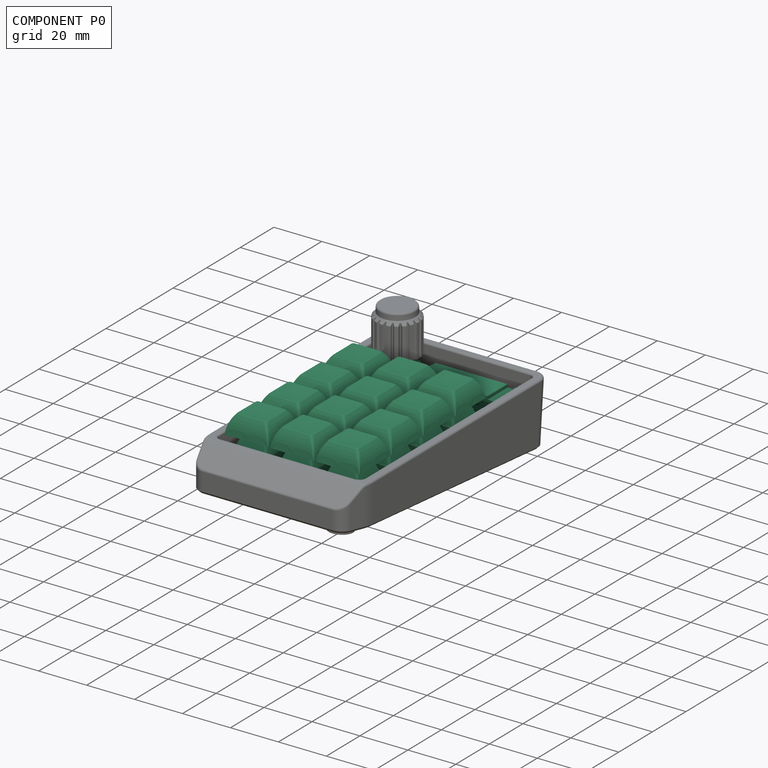
[diagram: component P0 — assembled]
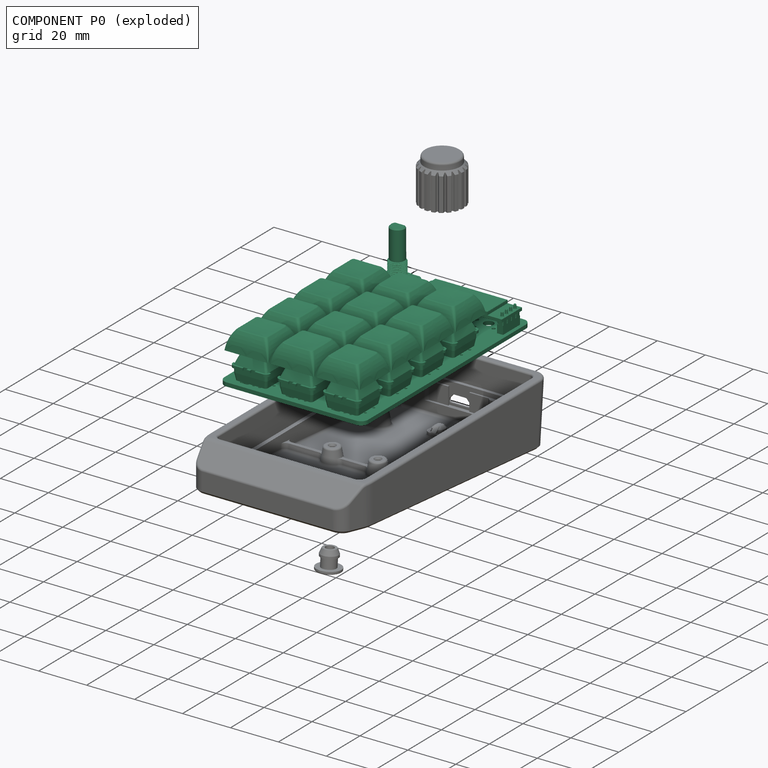
[diagram: component P0 — exploded]
COMPONENT P0 — recipe-attached ("keeby cat board", a linked part whose construction recipe lives in a companion FreeCAD document of the same project; that document's serialized recipe follows).
Held by: resting contact with P1 (derived edge); resting contact with P3 (derived edge).
Construction recipe (the companion document, serialized — sketch geometry with constraints, then the solid features built on it; lengths are millimeters unless a unit is written):

FCSTD DOCUMENT  (FreeCAD 2022.709R28846 (Git))
Label: keeby_cat_electronics_v1.0
License: All rights reserved
LicenseURL: http://en.wikipedia.org/wiki/All_rights_reserved
objects: Part::Feature×118, App::Link×53, Part::Compound2×10, App::Part×8, App::DocumentObjectGroup×3, PartDesign::CoordinateSystem×1, Sketcher::SketchObject×1
note: 120 computed .brp shape members not serialized (recipe doc carries the construction recipe); baked Part::Feature solids carry a one-line shape summary decoded from their .brp

FEATURE [PartDesign::CoordinateSystem] Local_CS_61fa
  AttacherType = Attacher::AttachEngine3D
  TreeRank = 3
FEATURE [Part::Feature] Pcb_61fa
  Placement = pos=(-92.16,90.4,-1) rot=(0,0,1;0rad)
  TreeRank = 4
  shape: bbox 60 x 100 x 1.6 mm, 469 faces (baked)
FEATURE [Sketcher::SketchObject] PCB_Sketch_61fa
  ArcFitTolerance = 0
  FullyConstrained = false
  TreeRank = 0
  sketch-geometry (16):
    g0: LineSegment StartX=-6.707 StartY=33.038 StartZ=0 EndX=-6.293 EndY=32.624 EndZ=0
    g1: LineSegment StartX=27 StartY=-66.669 StartZ=0 EndX=-27 EndY=-66.669 EndZ=0
    g2: LineSegment StartX=-27 StartY=33.331 StartZ=0 EndX=-7.414 EndY=33.331 EndZ=0
    g3: LineSegment StartX=-5.586 StartY=32.331 StartZ=0 EndX=5.586 EndY=32.331 EndZ=0
    g4: LineSegment StartX=7.414 StartY=33.331 StartZ=0 EndX=27 EndY=33.331 EndZ=0
    g5: LineSegment StartX=30 StartY=30.331 StartZ=0 EndX=30 EndY=-63.669 EndZ=0
    g6: LineSegment StartX=-30 StartY=-63.669 StartZ=0 EndX=-30 EndY=30.331 EndZ=0
    g7: LineSegment StartX=6.293 StartY=32.624 StartZ=0 EndX=6.707 EndY=33.038 EndZ=0
    g8: ArcOfCircle CenterX=-5.58541 CenterY=33.3319 CenterZ=0 NormalX=0 NormalY=0 NormalZ=-1 AngleXU=-1.57021 Radius=1.0009 StartAngle=0 EndAngle=0.784588
    g9: ArcOfCircle CenterX=-26.9989 CenterY=30.3299 CenterZ=0 NormalX=0 NormalY=0 NormalZ=-1 AngleXU=0.000364935 Radius=3.00109 StartAngle=6.28318 EndAngle=7.85325
    g10: ArcOfCircle CenterX=26.9989 CenterY=30.3299 CenterZ=0 NormalX=0 NormalY=0 NormalZ=-1 AngleXU=1.57116 Radius=3.00109 StartAngle=0 EndAngle=1.57007
    g11: ArcOfCircle CenterX=5.58549 CenterY=33.3317 CenterZ=0 NormalX=0 NormalY=0 NormalZ=-1 AngleXU=-2.35605 Radius=1.00072 StartAngle=0 EndAngle=0.784737
    g12: ArcOfCircle CenterX=-7.41449 CenterY=32.3303 CenterZ=0 NormalX=0 NormalY=0 NormalZ=-1 AngleXU=1.57129 Radius=1.00067 StartAngle=0 EndAngle=0.784782
    g13: ArcOfCircle CenterX=27.0006 CenterY=-63.6696 CenterZ=0 NormalX=0 NormalY=0 NormalZ=-1 AngleXU=3.14139 Radius=2.99938 StartAngle=0 EndAngle=1.57121
    g14: ArcOfCircle CenterX=7.4146 CenterY=32.3301 CenterZ=0 NormalX=0 NormalY=0 NormalZ=-1 AngleXU=0.785632 Radius=1.00093 StartAngle=0 EndAngle=0.784565
    g15: ArcOfCircle CenterX=-27.0006 CenterY=-63.6696 CenterZ=0 NormalX=0 NormalY=0 NormalZ=-1 AngleXU=-1.571 Radius=2.99938 StartAngle=0 EndAngle=1.57121
  constraints (16):
    c: Coincident(g6,g15)
    c: Coincident(g6,g9)
    c: Coincident(g1,g15)
    c: Coincident(g2,g9)
    c: Coincident(g2,g12)
    c: Coincident(g0,g12)
    c: Coincident(g0,g8)
    c: Coincident(g3,g8)
    c: Coincident(g3,g11)
    c: Coincident(g7,g11)
    c: Coincident(g7,g14)
    c: Coincident(g4,g14)
    c: Coincident(g1,g13)
    c: Coincident(g4,g10)
    c: Coincident(g5,g13)
    c: Coincident(g5,g10)
FEATURE [App::Part] Board_Geoms_61fa
  ClaimAllChildren = false
  ExportMode = 1
  Group = -> [Local_CS_61fa,Pcb_61fa,PCB_Sketch_61fa]
  Origin = -> Origin
  Placement = pos=(0,0,2) rot=(0,0,1;0rad)
  TreeRank = 5
  _ExportChildren = -> [Local_CS_61fa,Pcb_61fa,PCB_Sketch_61fa]
  _GroupVersion = 1
FEATURE [Part::Feature] Shape  label="EN4_PEC11-4220F-S0024_05183b338953"
  Placement = pos=(-19.05,-19.05,5.5) rot=(0.57735,0.57735,0.57735;2.0944rad)
  TreeRank = 0
  shape: bbox 14.93 x 14 x 30.2 mm, 452 faces (baked)
FEATURE [Part::Feature] Solid
  TreeRank = 0
  shape: bbox 3.202 x 2.804 x 1.782 mm, 91 faces (baked)
FEATURE [Part::Feature] Solid001
  TreeRank = 0
  shape: bbox 1.34 x 0.68 x 0.15 mm, 6 faces (baked)
FEATURE [Part::Feature] Solid002
  TreeRank = 0
  shape: bbox 1.34 x 0.68 x 0.15 mm, 7 faces (baked)
FEATURE [Part::Feature] Solid003
  TreeRank = 0
  shape: bbox 1.34 x 0.68 x 0.15 mm, 6 faces (baked)
FEATURE [Part::Feature] Solid004
  TreeRank = 0
  shape: bbox 1.34 x 0.68 x 0.15 mm, 6 faces (baked)
FEATURE [Part::Compound2] Compound  label="D11_LED_SK6812MINI-E v1_98239feeca95"
  Links = -> [Solid,Solid001,Solid002,Solid003,Solid004]
  Placement = pos=(-19.05,-19.33,0) rot=(0,0,1;3.14159rad)
  TreeRank = 0
FEATURE [App::Link] EN4_PEC11_4220F_S0024_05183b338953_ln_  label="EN3_PEC11-4220F-S0024_82a5f55121a7"
  AutoLinkLabel = false
  AutoPlacement = true
  LinkPlacement = pos=(19.05,0,5.5) rot=(0.57735,0.57735,0.57735;2.0944rad)
  LinkedObject = -> Shape
  Placement = pos=(19.05,0,5.5) rot=(0.57735,0.57735,0.57735;2.0944rad)
  ShowElement = false
  SyncGroupVisibility = false
  TreeRank = 0
  _LinkVersion = 1
FEATURE [Part::Feature] Shape001  label="SW4_cherry_mx v1_b31d9dcab5e3"
  Placement = pos=(19.05,0,0) rot=(0,0,1;3.14159rad)
  TreeRank = 0
  shape: bbox 15.6 x 16 x 18.5 mm, 105 faces (baked)
FEATURE [Part::Feature] Shape002  label="SW4_Keycap_adjusted v39_b31d9dcab5e3[2]"
  Placement = pos=(19.05,0,11.62) rot=(1,0,0;1.5708rad)
  TreeRank = 0
  shape: bbox 18.32 x 18.3 x 7.723 mm, 77 faces (baked)
FEATURE [App::Link] D11_LED_SK6812MINI_E_v1_98239feeca95_ln_  label="D15_LED_SK6812MINI-E v1_905db7f4c05a"
  AutoLinkLabel = false
  AutoPlacement = true
  LinkPlacement = pos=(19.05,23.5325,0) rot=(0,0,1;3.14159rad)
  LinkedObject = -> Compound
  Placement = pos=(19.05,23.5325,0) rot=(0,0,1;3.14159rad)
  ShowElement = false
  SyncGroupVisibility = false
  TreeRank = 0
  _LinkVersion = 1
FEATURE [App::Link] SW4_cherry_mx_v1_b31d9dcab5e3_ln_  label="SW13_cherry_mx v1_c6a9adc52cfe"
  AutoLinkLabel = false
  AutoPlacement = true
  LinkPlacement = pos=(19.05,-57.15,0) rot=(0,0,-1;3.14159rad)
  LinkedObject = -> Shape001
  Placement = pos=(19.05,-57.15,0) rot=(0,0,1;3.14159rad)
  ShowElement = false
  SyncGroupVisibility = false
  TreeRank = 0
  _LinkVersion = 1
FEATURE [App::Link] SW4_Keycap_adjusted_v39_b31d9dcab5e3_2__ln_  label="SW13_Keycap_adjusted v39_c6a9adc52cfe[2]"
  AutoLinkLabel = false
  AutoPlacement = true
  LinkPlacement = pos=(19.05,-57.15,11.55) rot=(1,0,0;1.5708rad)
  LinkedObject = -> Shape002
  Placement = pos=(19.05,-57.15,11.55) rot=(1,0,0;1.5708rad)
  ShowElement = false
  SyncGroupVisibility = false
  TreeRank = 0
  _LinkVersion = 1
FEATURE [App::Link] EN4_PEC11_4220F_S0024_05183b338953_ln_001  label="EN7_PEC11-4220F-S0024_a2e4a27f5c34"
  AutoLinkLabel = false
  AutoPlacement = true
  LinkPlacement = pos=(19.05,-38.1,5.5) rot=(0.57735,0.57735,0.57735;2.0944rad)
  LinkedObject = -> Shape
  Placement = pos=(19.05,-38.1,5.5) rot=(0.57735,0.57735,0.57735;2.0944rad)
  ShowElement = false
  SyncGroupVisibility = false
  TreeRank = 0
  _LinkVersion = 1
FEATURE [App::Link] D11_LED_SK6812MINI_E_v1_98239feeca95_ln_001  label="D3_LED_SK6812MINI-E v1_0005a27c16a8"
  AutoLinkLabel = false
  AutoPlacement = true
  LinkPlacement = pos=(19.05,-19.33,0) rot=(0,0,1;3.14159rad)
  LinkedObject = -> Compound
  Placement = pos=(19.05,-19.33,0) rot=(0,0,1;3.14159rad)
  ShowElement = false
  SyncGroupVisibility = false
  TreeRank = 0
  _LinkVersion = 1
FEATURE [App::Link] EN4_PEC11_4220F_S0024_05183b338953_ln_002  label="EN6_PEC11-4220F-S0024_fa3cd80f4dad"
  AutoLinkLabel = false
  AutoPlacement = true
  LinkPlacement = pos=(-19.05,-38.1,5.5) rot=(0.57735,0.57735,0.57735;2.0944rad)
  LinkedObject = -> Shape
  Placement = pos=(-19.05,-38.1,5.5) rot=(0.57735,0.57735,0.57735;2.0944rad)
  ShowElement = false
  SyncGroupVisibility = false
  TreeRank = 0
  _LinkVersion = 1
FEATURE [App::Link] D11_LED_SK6812MINI_E_v1_98239feeca95_ln_002  label="D7_LED_SK6812MINI-E v1_c4ce1cbe73e1"
  AutoLinkLabel = false
  AutoPlacement = true
  LinkPlacement = pos=(0,-38.38,0) rot=(0,0,1;3.14159rad)
  LinkedObject = -> Compound
  Placement = pos=(0,-38.38,0) rot=(0,0,1;3.14159rad)
  ShowElement = false
  SyncGroupVisibility = false
  TreeRank = 0
  _LinkVersion = 1
FEATURE [App::Link] EN4_PEC11_4220F_S0024_05183b338953_ln_003  label="EN8_PEC11-4220F-S0024_64c3b92ef519"
  AutoLinkLabel = false
  AutoPlacement = true
  LinkPlacement = pos=(-19.05,-57.15,5.5) rot=(0.57735,0.57735,0.57735;2.0944rad)
  LinkedObject = -> Shape
  Placement = pos=(-19.05,-57.15,5.5) rot=(0.57735,0.57735,0.57735;2.0944rad)
  ShowElement = false
  SyncGroupVisibility = false
  TreeRank = 0
  _LinkVersion = 1
FEATURE [App::Link] SW4_cherry_mx_v1_b31d9dcab5e3_ln_001  label="SW3_cherry_mx v1_a12fe743bfba"
  AutoLinkLabel = false
  AutoPlacement = true
  LinkPlacement = pos=(0,0,0) rot=(0,0,-1;3.14159rad)
  LinkedObject = -> Shape001
  Placement = pos=(0,0,0) rot=(0,0,1;3.14159rad)
  ShowElement = false
  SyncGroupVisibility = false
  TreeRank = 0
  _LinkVersion = 1
FEATURE [App::Link] SW4_Keycap_adjusted_v39_b31d9dcab5e3_2__ln_001  label="SW3_Keycap_adjusted v39_a12fe743bfba[2]"
  AutoLinkLabel = false
  AutoPlacement = true
  LinkPlacement = pos=(0,0,11.62) rot=(1,0,0;1.5708rad)
  LinkedObject = -> Shape002
  Placement = pos=(0,0,11.62) rot=(1,0,0;1.5708rad)
  ShowElement = false
  SyncGroupVisibility = false
  TreeRank = 0
  _LinkVersion = 1
FEATURE [App::Link] D11_LED_SK6812MINI_E_v1_98239feeca95_ln_003  label="D14_LED_SK6812MINI-E v1_1101d5bc822f"
  AutoLinkLabel = false
  AutoPlacement = true
  LinkPlacement = pos=(0,23.5325,0) rot=(0,0,1;3.14159rad)
  LinkedObject = -> Compound
  Placement = pos=(0,23.5325,0) rot=(0,0,1;3.14159rad)
  ShowElement = false
  SyncGroupVisibility = false
  TreeRank = 0
  _LinkVersion = 1
FEATURE [App::Link] EN4_PEC11_4220F_S0024_05183b338953_ln_004  label="EN9_PEC11-4220F-S0024_1bcb47a43990"
  AutoLinkLabel = false
  AutoPlacement = true
  LinkPlacement = pos=(19.05,-57.15,5.5) rot=(0.57735,0.57735,0.57735;2.0944rad)
  LinkedObject = -> Shape
  Placement = pos=(19.05,-57.15,5.5) rot=(0.57735,0.57735,0.57735;2.0944rad)
  ShowElement = false
  SyncGroupVisibility = false
  TreeRank = 0
  _LinkVersion = 1
FEATURE [App::Link] SW4_cherry_mx_v1_b31d9dcab5e3_ln_002  label="SW14_cherry_mx v1_3f50532e5e34"
  AutoLinkLabel = false
  AutoPlacement = true
  LinkPlacement = pos=(0,23.8125,0) rot=(0,0,-1;3.14159rad)
  LinkedObject = -> Shape001
  Placement = pos=(0,23.8125,0) rot=(0,0,1;3.14159rad)
  ShowElement = false
  SyncGroupVisibility = false
  TreeRank = 0
  _LinkVersion = 1
FEATURE [App::Link] SW4_Keycap_adjusted_v39_b31d9dcab5e3_2__ln_002  label="SW14_Keycap_adjusted v39_3f50532e5e34[2]"
  AutoLinkLabel = false
  AutoPlacement = true
  LinkPlacement = pos=(0,23.8125,11.62) rot=(1,0,0;1.5708rad)
  LinkedObject = -> Shape002
  Placement = pos=(0,23.8125,11.62) rot=(1,0,0;1.5708rad)
  ShowElement = false
  SyncGroupVisibility = false
  TreeRank = 0
  _LinkVersion = 1
FEATURE [Part::Feature] Solid005
  TreeRank = 0
  shape: bbox 10.16 x 2.5 x 3.5 mm, 38 faces (baked)
FEATURE [Part::Feature] Solid006 .. Solid009  x4 (patterned run collapsed; names and placements below)
  TreeRank = 0
  shape: bbox 1.22 x 1.12 x 5.697 mm, 20 faces (baked)
FEATURE [Part::Compound2] Compound001  label="Pin Socket 1x4 v1"
  Links = -> [Solid005,Solid006,Solid007,Solid008,Solid009]
  TreeRank = 0
FEATURE [Part::Feature] Solid010
  TreeRank = 0
  shape: bbox 10.12 x 2.5 x 1.5 mm, 34 faces (baked)
FEATURE [Part::Feature] Solid011 .. Solid014  x4 (patterned run collapsed; names and placements below)
  TreeRank = 0
  shape: bbox 0.64 x 0.64 x 7.5 mm, 14 faces (baked)
FEATURE [Part::Compound2] Compound002  label="Pin Header 1.4 v1"
  Links = -> [Solid010,Solid011,Solid012,Solid013,Solid014]
  Placement = pos=(0,0,3.5) rot=(0,0,1;0rad)
  TreeRank = 0
FEATURE [Part::Feature] Solid015
  TreeRank = 0
  shape: bbox 12.05 x 37.95 x 1.2 mm, 13 faces (baked)
FEATURE [Part::Feature] Solid016
  TreeRank = 0
  shape: bbox 1.9 x 1.9 x 1.2 mm, 4 faces (baked)
FEATURE [Part::Feature] Solid017
  TreeRank = 0
  shape: bbox 1.9 x 1.9 x 1.2 mm, 4 faces (baked)
FEATURE [Part::Feature] Solid018
  TreeRank = 0
  shape: bbox 1.9 x 1.9 x 1.2 mm, 4 faces (baked)
FEATURE [Part::Feature] Solid019
  TreeRank = 0
  shape: bbox 1.9 x 1.9 x 1.2 mm, 7 faces (baked)
FEATURE [Part::Feature] Solid020
  TreeRank = 0
  shape: bbox 12.05 x 30.1 x 1.2 mm, 6 faces (baked)
FEATURE [Part::Feature] Solid021
  TreeRank = 0
  shape: bbox 11.87 x 27.54 x 0.1 mm, 6 faces (baked)
FEATURE [Part::Feature] Solid022
  TreeRank = 0
  shape: bbox 0.5698 x 0.7402 x 0.01 mm, 37 faces (baked)
FEATURE [Part::Feature] Solid023
  TreeRank = 0
  shape: bbox 0.6328 x 0.7402 x 0.01 mm, 24 faces (baked)
FEATURE [Part::Feature] Solid024
  TreeRank = 0
  shape: bbox 0.564 x 0.7158 x 0.01 mm, 12 faces (baked)
FEATURE [Part::Feature] Solid025
  TreeRank = 0
  shape: bbox 0.5918 x 0.7158 x 0.01 mm, 24 faces (baked)
FEATURE [Part::Feature] Solid026
  TreeRank = 0
  shape: bbox 0.5698 x 0.7402 x 0.01 mm, 37 faces (baked)
FEATURE [Part::Feature] Solid027
  TreeRank = 0
  shape: bbox 0.5918 x 0.7158 x 0.01 mm, 24 faces (baked)
FEATURE [Part::Feature] Solid028
  TreeRank = 0
  shape: bbox 0.5918 x 0.7158 x 0.01 mm, 14 faces (baked)
FEATURE [Part::Feature] Solid029
  TreeRank = 0
  shape: bbox 0.6328 x 0.7402 x 0.01 mm, 24 faces (baked)
FEATURE [Part::Feature] Solid030
  TreeRank = 0
  shape: bbox 0.6621 x 0.7402 x 0.01 mm, 31 faces (baked)
FEATURE [Part::Feature] Solid031
  TreeRank = 0
  shape: bbox 0.6548 x 0.7158 x 0.01 mm, 11 faces (baked)
FEATURE [Part::Feature] Solid032
  TreeRank = 0
  shape: bbox 0.6328 x 0.7402 x 0.01 mm, 24 faces (baked)
FEATURE [Part::Feature] Solid033
  TreeRank = 0
  shape: bbox 0.6699 x 0.7158 x 0.01 mm, 15 faces (baked)
FEATURE [Part::Compound2] Compound003  label="OLED Module v2"
  Links = -> [Solid015,Solid016,Solid017,Solid018,Solid019,Solid020,Solid021,Solid022,Solid023,Solid024,Solid025,Solid026,Solid027,Solid028,Solid029,Solid030,Solid031,Solid032,Solid033]
  Placement = pos=(0,0,5) rot=(0,0,1;0rad)
  TreeRank = 0
FEATURE [Part::Feature] Solid034 .. Solid037  x4 (patterned run collapsed; names and placements below)
  TreeRank = 0
  shape: bbox 1.781 x 1.781 x 1.906 mm, 6 faces (baked)
FEATURE [Part::Compound2] Compound004
  Links = -> [Solid034,Solid035,Solid036,Solid037]
  TreeRank = 0
FEATURE [App::Part] Part  label="OL1_OLED Module with Pins v1_e05ba27373dd"
  ClaimAllChildren = false
  ExportMode = 1
  Group = -> [Compound001,Compound002,Compound003,Compound004,Solid009,Solid005,Solid007,Solid006,Solid008,Solid010,Solid011,Solid013,Solid012,Solid014,Solid017,Solid019,Solid022,Solid015,Solid016,Solid018,Solid020,Solid021,Solid023,Solid033,Solid030,Solid027,Solid032,Solid025,Solid029,Solid026,Solid024,Solid028,Solid031,Solid037,Solid035,Solid036,Solid034]
  Origin = -> Origin008
  Placement = pos=(27.305,23.8125,0) rot=(0,0,1;1.5708rad)
  TreeRank = 0
  _ExportChildren = -> [Compound001,Compound002,Compound003,Compound004]
  _GroupVersion = 1
FEATURE [App::Link] D11_LED_SK6812MINI_E_v1_98239feeca95_ln_004  label="D2_LED_SK6812MINI-E v1_07ac1b52877c"
  AutoLinkLabel = false
  AutoPlacement = true
  LinkPlacement = pos=(19.05,-38.38,0) rot=(0,0,1;3.14159rad)
  LinkedObject = -> Compound
  Placement = pos=(19.05,-38.38,0) rot=(0,0,1;3.14159rad)
  ShowElement = false
  SyncGroupVisibility = false
  TreeRank = 0
  _LinkVersion = 1
FEATURE [App::Link] D11_LED_SK6812MINI_E_v1_98239feeca95_ln_005  label="D6_LED_SK6812MINI-E v1_10a1c9ba8b18"
  AutoLinkLabel = false
  AutoPlacement = true
  LinkPlacement = pos=(0,-19.33,0) rot=(0,0,1;3.14159rad)
  LinkedObject = -> Compound
  Placement = pos=(0,-19.33,0) rot=(0,0,1;3.14159rad)
  ShowElement = false
  SyncGroupVisibility = false
  TreeRank = 0
  _LinkVersion = 1
FEATURE [App::Link] D11_LED_SK6812MINI_E_v1_98239feeca95_ln_006  label="D8_LED_SK6812MINI-E v1_ec62b56ff335"
  AutoLinkLabel = false
  AutoPlacement = true
  LinkPlacement = pos=(0,-57.43,0) rot=(0,0,1;3.14159rad)
  LinkedObject = -> Compound
  Placement = pos=(0,-57.43,0) rot=(0,0,1;3.14159rad)
  ShowElement = false
  SyncGroupVisibility = false
  TreeRank = 0
  _LinkVersion = 1
FEATURE [App::Link] D11_LED_SK6812MINI_E_v1_98239feeca95_ln_007  label="D13_LED_SK6812MINI-E v1_c8149a755eaa"
  AutoLinkLabel = false
  AutoPlacement = true
  LinkPlacement = pos=(-19.05,23.5325,0) rot=(0,0,1;3.14159rad)
  LinkedObject = -> Compound
  Placement = pos=(-19.05,23.5325,0) rot=(0,0,1;3.14159rad)
  ShowElement = false
  SyncGroupVisibility = false
  TreeRank = 0
  _LinkVersion = 1
FEATURE [App::Link] SW4_cherry_mx_v1_b31d9dcab5e3_ln_003  label="SW9_cherry_mx v1_ef7394e8c103"
  AutoLinkLabel = false
  AutoPlacement = true
  LinkPlacement = pos=(0,-38.1,0) rot=(0,0,-1;3.14159rad)
  LinkedObject = -> Shape001
  Placement = pos=(0,-38.1,0) rot=(0,0,1;3.14159rad)
  ShowElement = false
  SyncGroupVisibility = false
  TreeRank = 0
  _LinkVersion = 1
FEATURE [App::Link] SW4_Keycap_adjusted_v39_b31d9dcab5e3_2__ln_003  label="SW9_Keycap_adjusted v39_ef7394e8c103[2]"
  AutoLinkLabel = false
  AutoPlacement = true
  LinkPlacement = pos=(0,-38.1,11.62) rot=(1,0,0;1.5708rad)
  LinkedObject = -> Shape002
  Placement = pos=(0,-38.1,11.62) rot=(1,0,0;1.5708rad)
  ShowElement = false
  SyncGroupVisibility = false
  TreeRank = 0
  _LinkVersion = 1
FEATURE [App::Link] EN4_PEC11_4220F_S0024_05183b338953_ln_005  label="EN1_PEC11-4220F-S0024_84fb90879178"
  AutoLinkLabel = false
  AutoPlacement = true
  LinkPlacement = pos=(-19.05,23.8125,5.5) rot=(0.57735,0.57735,0.57735;2.0944rad)
  LinkedObject = -> Shape
  Placement = pos=(-19.05,23.8125,5.5) rot=(0.57735,0.57735,0.57735;2.0944rad)
  ShowElement = false
  SyncGroupVisibility = false
  TreeRank = 0
  _LinkVersion = 1
FEATURE [App::Link] D11_LED_SK6812MINI_E_v1_98239feeca95_ln_008  label="D1_LED_SK6812MINI-E v1_b059c628641d"
  AutoLinkLabel = false
  AutoPlacement = true
  LinkPlacement = pos=(19.05,-57.43,0) rot=(0,0,1;3.14159rad)
  LinkedObject = -> Compound
  Placement = pos=(19.05,-57.43,0) rot=(0,0,1;3.14159rad)
  ShowElement = false
  SyncGroupVisibility = false
  TreeRank = 0
  _LinkVersion = 1
FEATURE [App::Link] SW4_cherry_mx_v1_b31d9dcab5e3_ln_004  label="SW11_cherry_mx v1_2edbdd72f56d"
  AutoLinkLabel = false
  AutoPlacement = true
  LinkPlacement = pos=(-19.05,-57.15,0) rot=(0,0,-1;3.14159rad)
  LinkedObject = -> Shape001
  Placement = pos=(-19.05,-57.15,0) rot=(0,0,1;3.14159rad)
  ShowElement = false
  SyncGroupVisibility = false
  TreeRank = 0
  _LinkVersion = 1
FEATURE [App::Link] SW4_Keycap_adjusted_v39_b31d9dcab5e3_2__ln_004  label="SW11_Keycap_adjusted v39_2edbdd72f56d[2]"
  AutoLinkLabel = false
  AutoPlacement = true
  LinkPlacement = pos=(-19.05,-57.15,11.55) rot=(1,0,0;1.5708rad)
  LinkedObject = -> Shape002
  Placement = pos=(-19.05,-57.15,11.55) rot=(1,0,0;1.5708rad)
  ShowElement = false
  SyncGroupVisibility = false
  TreeRank = 0
  _LinkVersion = 1
FEATURE [App::Link] SW4_cherry_mx_v1_b31d9dcab5e3_ln_005  label="SW15_cherry_mx v1_affe07005f5e"
  AutoLinkLabel = false
  AutoPlacement = true
  LinkPlacement = pos=(19.05,23.8125,0) rot=(0,0,-1;3.14159rad)
  LinkedObject = -> Shape001
  Placement = pos=(19.05,23.8125,0) rot=(0,0,1;3.14159rad)
  ShowElement = false
  SyncGroupVisibility = false
  TreeRank = 0
  _LinkVersion = 1
FEATURE [App::Link] SW4_Keycap_adjusted_v39_b31d9dcab5e3_2__ln_005  label="SW15_Keycap_adjusted v39_affe07005f5e[2]"
  AutoLinkLabel = false
  AutoPlacement = true
  LinkPlacement = pos=(19.05,23.8125,11.62) rot=(1,0,0;1.5708rad)
  LinkedObject = -> Shape002
  Placement = pos=(19.05,23.8125,11.62) rot=(1,0,0;1.5708rad)
  ShowElement = false
  SyncGroupVisibility = false
  TreeRank = 0
  _LinkVersion = 1
FEATURE [Part::Feature] Solid038  label="slider"
  TreeRank = 0
  shape: bbox 2 x 6 x 16.75 mm, 15 faces (baked)
FEATURE [Part::Feature] Solid039  label="base"
  TreeRank = 0
  shape: bbox 9 x 75 x 7 mm, 15 faces (baked)
FEATURE [Part::Feature] Solid040 .. Solid045  x6 (patterned run collapsed; names and placements below)
  TreeRank = 0
  shape: bbox 0.6 x 0.6 x 3.5 mm, 6 faces (baked)
FEATURE [Part::Compound2] Compound005  label="leads"
  Links = -> [Solid040,Solid041,Solid042,Solid043,Solid044,Solid045]
  TreeRank = 0
FEATURE [App::Part] Part001  label="VR3_B10K B103 sliding potentiometer v8_0e7ca3619782"
  ClaimAllChildren = false
  ExportMode = 1
  Group = -> [Solid038,Solid039,Compound005,Solid045,Solid042,Solid043,Solid044,Solid041,Solid040]
  Origin = -> Origin009
  Placement = pos=(19.05,-28.575,0) rot=(0,0,1;3.14159rad)
  TreeRank = 0
  _ExportChildren = -> [Solid038,Solid039,Compound005]
  _GroupVersion = 1
FEATURE [App::Link] D11_LED_SK6812MINI_E_v1_98239feeca95_ln_009  label="D12_LED_SK6812MINI-E v1_20bb1948b82e"
  AutoLinkLabel = false
  AutoPlacement = true
  LinkPlacement = pos=(-20.8,0.05,0) rot=(0,0,1;2.79253rad)
  LinkedObject = -> Compound
  Placement = pos=(-20.8,0.05,0) rot=(0,0,1;2.79253rad)
  ShowElement = false
  SyncGroupVisibility = false
  TreeRank = 0
  _LinkVersion = 1
FEATURE [App::Link] D11_LED_SK6812MINI_E_v1_98239feeca95_ln_010  label="D9_LED_SK6812MINI-E v1_28ac90cb7290"
  AutoLinkLabel = false
  AutoPlacement = true
  LinkPlacement = pos=(-19.05,-57.43,0) rot=(0,0,1;3.14159rad)
  LinkedObject = -> Compound
  Placement = pos=(-19.05,-57.43,0) rot=(0,0,1;3.14159rad)
  ShowElement = false
  SyncGroupVisibility = false
  TreeRank = 0
  _LinkVersion = 1
FEATURE [App::Link] SW4_cherry_mx_v1_b31d9dcab5e3_ln_006  label="SW8_cherry_mx v1_d46a69a4d81d"
  AutoLinkLabel = false
  AutoPlacement = true
  LinkPlacement = pos=(-19.05,-38.1,0) rot=(0,0,-1;3.14159rad)
  LinkedObject = -> Shape001
  Placement = pos=(-19.05,-38.1,0) rot=(0,0,1;3.14159rad)
  ShowElement = false
  SyncGroupVisibility = false
  TreeRank = 0
  _LinkVersion = 1
FEATURE [App::Link] SW4_Keycap_adjusted_v39_b31d9dcab5e3_2__ln_006  label="SW8_Keycap_adjusted v39_d46a69a4d81d[2]"
  AutoLinkLabel = false
  AutoPlacement = true
  LinkPlacement = pos=(-19.05,-38.1,11.62) rot=(1,0,0;1.5708rad)
  LinkedObject = -> Shape002
  Placement = pos=(-19.05,-38.1,11.62) rot=(1,0,0;1.5708rad)
  ShowElement = false
  SyncGroupVisibility = false
  TreeRank = 0
  _LinkVersion = 1
FEATURE [App::Link] EN4_PEC11_4220F_S0024_05183b338953_ln_006  label="EN5_PEC11-4220F-S0024_9304346049a0"
  AutoLinkLabel = false
  AutoPlacement = true
  LinkPlacement = pos=(19.05,-19.05,5.5) rot=(0.57735,0.57735,0.57735;2.0944rad)
  LinkedObject = -> Shape
  Placement = pos=(19.05,-19.05,5.5) rot=(0.57735,0.57735,0.57735;2.0944rad)
  ShowElement = false
  SyncGroupVisibility = false
  TreeRank = 0
  _LinkVersion = 1
FEATURE [App::Link] SW4_cherry_mx_v1_b31d9dcab5e3_ln_007  label="SW12_cherry_mx v1_0fc034a3f74b"
  AutoLinkLabel = false
  AutoPlacement = true
  LinkPlacement = pos=(0,-57.15,0) rot=(0,0,-1;3.14159rad)
  LinkedObject = -> Shape001
  Placement = pos=(0,-57.15,0) rot=(0,0,1;3.14159rad)
  ShowElement = false
  SyncGroupVisibility = false
  TreeRank = 0
  _LinkVersion = 1
FEATURE [App::Link] SW4_Keycap_adjusted_v39_b31d9dcab5e3_2__ln_007  label="SW12_Keycap_adjusted v39_0fc034a3f74b[2]"
  AutoLinkLabel = false
  AutoPlacement = true
  LinkPlacement = pos=(0,-57.15,11.55) rot=(1,0,0;1.5708rad)
  LinkedObject = -> Shape002
  Placement = pos=(0,-57.15,11.55) rot=(1,0,0;1.5708rad)
  ShowElement = false
  SyncGroupVisibility = false
  TreeRank = 0
  _LinkVersion = 1
FEATURE [App::Link] VR3_B10K_B103_sliding_potentiometer_v8_0e7ca3619782_ln_  label="VR1_B10K B103 sliding potentiometer v8_28896c78a179"
  AutoLinkLabel = false
  AutoPlacement = true
  LinkPlacement = pos=(-19.05,-28.575,0) rot=(0,0,1;3.14159rad)
  LinkedObject = -> Part001
  Placement = pos=(-19.05,-28.575,0) rot=(0,0,1;3.14159rad)
  ShowElement = false
  SyncGroupVisibility = false
  TreeRank = 0
  _LinkVersion = 1
FEATURE [App::Link] D11_LED_SK6812MINI_E_v1_98239feeca95_ln_011  label="D10_LED_SK6812MINI-E v1_e4e8fa4bb40b"
  AutoLinkLabel = false
  AutoPlacement = true
  LinkPlacement = pos=(-19.05,-38.38,0) rot=(0,0,1;3.14159rad)
  LinkedObject = -> Compound
  Placement = pos=(-19.05,-38.38,0) rot=(0,0,1;3.14159rad)
  ShowElement = false
  SyncGroupVisibility = false
  TreeRank = 0
  _LinkVersion = 1
FEATURE [App::Link] SW4_cherry_mx_v1_b31d9dcab5e3_ln_008  label="SW7_cherry_mx v1_eab81a92fce9"
  AutoLinkLabel = false
  AutoPlacement = true
  LinkPlacement = pos=(19.05,-19.05,0) rot=(0,0,-1;3.14159rad)
  LinkedObject = -> Shape001
  Placement = pos=(19.05,-19.05,0) rot=(0,0,1;3.14159rad)
  ShowElement = false
  SyncGroupVisibility = false
  TreeRank = 0
  _LinkVersion = 1
FEATURE [App::Link] SW4_Keycap_adjusted_v39_b31d9dcab5e3_2__ln_008  label="SW7_Keycap_adjusted v39_eab81a92fce9[2]"
  AutoLinkLabel = false
  AutoPlacement = true
  LinkPlacement = pos=(19.05,-19.05,11.62) rot=(1,0,0;1.5708rad)
  LinkedObject = -> Shape002
  Placement = pos=(19.05,-19.05,11.62) rot=(1,0,0;1.5708rad)
  ShowElement = false
  SyncGroupVisibility = false
  TreeRank = 0
  _LinkVersion = 1
FEATURE [App::Link] SW4_cherry_mx_v1_b31d9dcab5e3_ln_009  label="SW6_cherry_mx v1_99d446687b03"
  AutoLinkLabel = false
  AutoPlacement = true
  LinkPlacement = pos=(0,-19.05,0) rot=(0,0,-1;3.14159rad)
  LinkedObject = -> Shape001
  Placement = pos=(0,-19.05,0) rot=(0,0,1;3.14159rad)
  ShowElement = false
  SyncGroupVisibility = false
  TreeRank = 0
  _LinkVersion = 1
FEATURE [App::Link] SW4_Keycap_adjusted_v39_b31d9dcab5e3_2__ln_009  label="SW6_Keycap_adjusted v39_99d446687b03[2]"
  AutoLinkLabel = false
  AutoPlacement = true
  LinkPlacement = pos=(0,-19.05,11.62) rot=(1,0,0;1.5708rad)
  LinkedObject = -> Shape002
  Placement = pos=(0,-19.05,11.62) rot=(1,0,0;1.5708rad)
  ShowElement = false
  SyncGroupVisibility = false
  TreeRank = 0
  _LinkVersion = 1
FEATURE [App::Link] SW4_cherry_mx_v1_b31d9dcab5e3_ln_010  label="SW10_cherry_mx v1_ca0f646de897"
  AutoLinkLabel = false
  AutoPlacement = true
  LinkPlacement = pos=(19.05,-38.1,0) rot=(0,0,-1;3.14159rad)
  LinkedObject = -> Shape001
  Placement = pos=(19.05,-38.1,0) rot=(0,0,1;3.14159rad)
  ShowElement = false
  SyncGroupVisibility = false
  TreeRank = 0
  _LinkVersion = 1
FEATURE [App::Link] SW4_Keycap_adjusted_v39_b31d9dcab5e3_2__ln_010  label="SW10_Keycap_adjusted v39_ca0f646de897[2]"
  AutoLinkLabel = false
  AutoPlacement = true
  LinkPlacement = pos=(19.05,-38.1,11.62) rot=(1,0,0;1.5708rad)
  LinkedObject = -> Shape002
  Placement = pos=(19.05,-38.1,11.62) rot=(1,0,0;1.5708rad)
  ShowElement = false
  SyncGroupVisibility = false
  TreeRank = 0
  _LinkVersion = 1
FEATURE [App::Link] EN4_PEC11_4220F_S0024_05183b338953_ln_007  label="EN2_PEC11-4220F-S0024_265aca994ef9"
  AutoLinkLabel = false
  AutoPlacement = true
  LinkPlacement = pos=(-19.05,0,5.5) rot=(0.57735,0.57735,0.57735;2.0944rad)
  LinkedObject = -> Shape
  Placement = pos=(-19.05,0,5.5) rot=(0.57735,0.57735,0.57735;2.0944rad)
  ShowElement = false
  SyncGroupVisibility = false
  TreeRank = 0
  _LinkVersion = 1
FEATURE [App::Link] D11_LED_SK6812MINI_E_v1_98239feeca95_ln_012  label="D4_LED_SK6812MINI-E v1_6e3c03ec8126"
  AutoLinkLabel = false
  AutoPlacement = true
  LinkPlacement = pos=(17.3,0.05,0) rot=(0,0,1;2.79253rad)
  LinkedObject = -> Compound
  Placement = pos=(17.3,0.05,0) rot=(0,0,1;2.79253rad)
  ShowElement = false
  SyncGroupVisibility = false
  TreeRank = 0
  _LinkVersion = 1
FEATURE [App::Link] D11_LED_SK6812MINI_E_v1_98239feeca95_ln_013  label="D5_LED_SK6812MINI-E v1_dc6b6f9343d5"
  AutoLinkLabel = false
  AutoPlacement = true
  LinkPlacement = pos=(-1.75,0.05,0) rot=(0,0,1;2.79253rad)
  LinkedObject = -> Compound
  Placement = pos=(-1.75,0.05,0) rot=(0,0,1;2.79253rad)
  ShowElement = false
  SyncGroupVisibility = false
  TreeRank = 0
  _LinkVersion = 1
FEATURE [App::Link] VR3_B10K_B103_sliding_potentiometer_v8_0e7ca3619782_ln_001  label="VR2_B10K B103 sliding potentiometer v8_2f7c46c00bb4"
  AutoLinkLabel = false
  AutoPlacement = true
  LinkPlacement = pos=(0,-28.575,0) rot=(0,0,1;3.14159rad)
  LinkedObject = -> Part001
  Placement = pos=(0,-28.575,0) rot=(0,0,1;3.14159rad)
  ShowElement = false
  SyncGroupVisibility = false
  TreeRank = 0
  _LinkVersion = 1
FEATURE [App::Link] SW4_cherry_mx_v1_b31d9dcab5e3_ln_011  label="SW5_cherry_mx v1_2b04c5b0159e"
  AutoLinkLabel = false
  AutoPlacement = true
  LinkPlacement = pos=(-19.05,-19.05,0) rot=(0,0,-1;3.14159rad)
  LinkedObject = -> Shape001
  Placement = pos=(-19.05,-19.05,0) rot=(0,0,1;3.14159rad)
  ShowElement = false
  SyncGroupVisibility = false
  TreeRank = 0
  _LinkVersion = 1
FEATURE [App::Link] SW4_Keycap_adjusted_v39_b31d9dcab5e3_2__ln_011  label="SW5_Keycap_adjusted v39_2b04c5b0159e[2]"
  AutoLinkLabel = false
  AutoPlacement = true
  LinkPlacement = pos=(-19.05,-19.05,11.62) rot=(1,0,0;1.5708rad)
  LinkedObject = -> Shape002
  Placement = pos=(-19.05,-19.05,11.62) rot=(1,0,0;1.5708rad)
  ShowElement = false
  SyncGroupVisibility = false
  TreeRank = 0
  _LinkVersion = 1
FEATURE [App::Link] SW4_cherry_mx_v1_b31d9dcab5e3_ln_012  label="SW2_cherry_mx v1_ece5ddd5dac5"
  AutoLinkLabel = false
  AutoPlacement = true
  LinkPlacement = pos=(-19.05,0,0) rot=(0,0,-1;3.14159rad)
  LinkedObject = -> Shape001
  Placement = pos=(-19.05,0,0) rot=(0,0,1;3.14159rad)
  ShowElement = false
  SyncGroupVisibility = false
  TreeRank = 0
  _LinkVersion = 1
FEATURE [App::Link] SW4_Keycap_adjusted_v39_b31d9dcab5e3_2__ln_012  label="SW2_Keycap_adjusted v39_ece5ddd5dac5[2]"
  AutoLinkLabel = false
  AutoPlacement = true
  LinkPlacement = pos=(-19.05,0,11.62) rot=(1,0,0;1.5708rad)
  LinkedObject = -> Shape002
  Placement = pos=(-19.05,0,11.62) rot=(1,0,0;1.5708rad)
  ShowElement = false
  SyncGroupVisibility = false
  TreeRank = 0
  _LinkVersion = 1
FEATURE [App::Link] SW4_cherry_mx_v1_b31d9dcab5e3_ln_013  label="SW1_cherry_mx v1_79efe81ded34"
  AutoLinkLabel = false
  AutoPlacement = true
  LinkPlacement = pos=(-19.05,23.8125,0) rot=(0,0,-1;3.14159rad)
  LinkedObject = -> Shape001
  Placement = pos=(-19.05,23.8125,0) rot=(0,0,1;3.14159rad)
  ShowElement = false
  SyncGroupVisibility = false
  TreeRank = 0
  _LinkVersion = 1
FEATURE [App::Link] SW4_Keycap_adjusted_v39_b31d9dcab5e3_2__ln_013  label="SW1_Keycap_adjusted v39_79efe81ded34[2]"
  AutoLinkLabel = false
  AutoPlacement = true
  LinkPlacement = pos=(-19.05,23.8125,11.62) rot=(1,0,0;1.5708rad)
  LinkedObject = -> Shape002
  Placement = pos=(-19.05,23.8125,11.62) rot=(1,0,0;1.5708rad)
  ShowElement = false
  SyncGroupVisibility = false
  TreeRank = 0
  _LinkVersion = 1
FEATURE [Part::Feature] Solid046  label="Oscillator_HC-49/S v1"
  Placement = pos=(-11.43,1.27,-17.526) rot=(0,1,0;1.5708rad)
  TreeRank = 0
  shape: bbox 11.35 x 5.5 x 5 mm, 15 faces (baked)
FEATURE [Part::Feature] Solid047  label="STM32F103C8T6_BluePill_Board v6"
  TreeRank = 0
  shape: bbox 22.86 x 1.27 x 53.34 mm, 60 faces (baked)
FEATURE [Part::Feature] Solid048
  TreeRank = 0
  shape: bbox 3.2 x 2.38 x 8 mm, 30 faces (baked)
FEATURE [Part::Feature] Solid049
  TreeRank = 0
  shape: bbox 3.8 x 1.01 x 0.5 mm, 18 faces (baked)
FEATURE [Part::Feature] Solid050
  TreeRank = 0
  shape: bbox 3.8 x 1.01 x 0.5 mm, 18 faces (baked)
FEATURE [Part::Compound2] Compound006  label="Oscillator_MC-306 v3"
  Links = -> [Solid048,Solid049,Solid050]
  Placement = pos=(-11.43,1.43,-12.192) rot=(0,-1,0;1.5708rad)
  TreeRank = 0
FEATURE [Part::Feature] Solid051  label="STM32_LQFP48 v3"
  Placement = pos=(-11.43,1.27,-26.162) rot=(0,1,0;0.785398rad)
  TreeRank = 0
  shape: bbox 9.899 x 1.6 x 9.899 mm, 6 faces (baked)
FEATURE [Part::Feature] Solid052  label="Tactile_SMD_5x5mm v1"
  Placement = pos=(-14.43,1.3192,-38) rot=(0.57735,0.57735,0.57735;4.18879rad)
  TreeRank = 0
  shape: bbox 5.081 x 1.525 x 6.501 mm, 70 faces (baked)
FEATURE [Part::Feature] Solid053  label="micro_usb_socket v1"
  Placement = pos=(-11.43,1.535,-53.8) rot=(0,1,0;3.14159rad)
  TreeRank = 0
  shape: bbox 10.2 x 2.83 x 7.23 mm, 434 faces (baked)
FEATURE [Part::Feature] Solid054
  TreeRank = 0
  shape: bbox 2.54 x 2.5 x 2.54 mm, 26 faces (baked)
FEATURE [Part::Feature] Solid055
  TreeRank = 0
  shape: bbox 0.64 x 10 x 4.8 mm, 18 faces (baked)
FEATURE [Part::Feature] Solid056
  TreeRank = 0
  shape: bbox 2.54 x 2.5 x 2.54 mm, 26 faces (baked)
FEATURE [Part::Feature] Solid057
  TreeRank = 0
  shape: bbox 2.54 x 2.5 x 2.54 mm, 26 faces (baked)
FEATURE [Part::Feature] Solid058
  TreeRank = 0
  shape: bbox 2.54 x 2.5 x 2.54 mm, 26 faces (baked)
FEATURE [Part::Feature] Solid059
  TreeRank = 0
  shape: bbox 0.64 x 10 x 4.8 mm, 18 faces (baked)
FEATURE [Part::Feature] Solid060
  TreeRank = 0
  shape: bbox 0.64 x 10 x 4.8 mm, 18 faces (baked)
FEATURE [Part::Feature] Solid061
  TreeRank = 0
  shape: bbox 0.64 x 10 x 4.8 mm, 18 faces (baked)
FEATURE [Part::Compound2] Compound007  label="Header_L4_10x4.8 v6"
  Links = -> [Solid054,Solid055,Solid056,Solid057,Solid058,Solid059,Solid060,Solid061]
  Placement = pos=(-11.43,2.54,-2.67) rot=(0,-0.707107,0.707107;3.14159rad)
  TreeRank = 0
FEATURE [Part::Feature] Solid062
  TreeRank = 0
  shape: bbox 2.54 x 2.5 x 2.54 mm, 26 faces (baked)
FEATURE [Part::Feature] Solid063
  TreeRank = 0
  shape: bbox 0.64 x 11.6 x 0.64 mm, 14 faces (baked)
FEATURE [Part::Feature] Solid064 .. Solid068  x5 (patterned run collapsed; names and placements below)
  TreeRank = 0
  shape: bbox 2.54 x 2.5 x 2.54 mm, 26 faces (baked)
FEATURE [Part::Feature] Solid069 .. Solid073  x5 (patterned run collapsed; names and placements below)
  TreeRank = 0
  shape: bbox 0.64 x 11.6 x 0.64 mm, 14 faces (baked)
FEATURE [Part::Compound2] Compound008  label="Header_Male_2x3x11.6 v2"
  Links = -> [Solid062,Solid063,Solid064,Solid065,Solid066,Solid067,Solid068,Solid069,Solid070,Solid071,Solid072,Solid073]
  Placement = pos=(-8.636,1.27,-38.354) rot=(0,1,0;1.5708rad)
  TreeRank = 0
FEATURE [Part::Feature] Solid074
  TreeRank = 0
  shape: bbox 2.54 x 2.5 x 2.54 mm, 26 faces (baked)
FEATURE [Part::Feature] Solid075
  TreeRank = 0
  shape: bbox 0.64 x 11.6 x 0.64 mm, 14 faces (baked)
FEATURE [Part::Feature] Solid076 .. Solid094  x19 (patterned run collapsed; names and placements below)
  TreeRank = 0
  shape: bbox 2.54 x 2.5 x 2.54 mm, 26 faces (baked)
FEATURE [Part::Feature] Solid095 .. Solid113  x19 (patterned run collapsed; names and placements below)
  TreeRank = 0
  shape: bbox 0.64 x 11.6 x 0.64 mm, 14 faces (baked)
FEATURE [Part::Compound2] Compound009  label="Header_Male_1x20x11.6 v2"
  Links = -> [Solid074,Solid075,Solid076,Solid077,Solid078,Solid079,Solid080,Solid081,Solid082,Solid083,Solid084,Solid085,Solid086,Solid087,Solid088,Solid089,Solid090,Solid091,Solid092,Solid093,Solid094,Solid095,Solid096,Solid097,Solid098,Solid099,Solid100,Solid101,Solid102,Solid103,Solid104,Solid105,Solid106,Solid107,Solid108,Solid109,Solid110,Solid111,Solid112,Solid113]
  TreeRank = 0
FEATURE [App::Link] Link  label="Header_Male_1x20x11.6 v003"
  AutoLinkLabel = false
  AutoPlacement = true
  ElementCount = 2
  LinkedObject = -> Compound009
  PlacementList = 2 placements: [(-3.81,2.22045e-15,-26.67),(-19.05,2.22045e-15,-26.67)]
  ScaleList = (2) [(1,1,1),(1,1,1)]
  ShowElement = false
  SyncGroupVisibility = false
  TreeRank = 0
  _LinkVersion = 1
FEATURE [App::Part] Part002  label="U1_STM32F103C8T6_Blue_Pill v6_a20226da84fa"
  ClaimAllChildren = false
  ExportMode = 1
  Group = -> [Solid046,Solid047,Compound006,Solid051,Solid052,Solid053,Compound007,Compound008,Link,Solid048,Solid050,Solid049,Solid054,Solid056,Solid058,Solid055,Solid059,Solid060,Solid061,Solid057,Solid068,Solid073,Solid069,Solid067,Solid071,Solid070,Solid066,Solid072,Solid063,Solid064,Solid065,Solid062]
  Origin = -> Origin010
  Placement = pos=(-11.43,-20.6775,-2.8) rot=(0,-0.707107,0.707107;3.14159rad)
  TreeRank = 0
  _ExportChildren = -> [Solid046,Solid047,Compound006,Solid051,Solid052,Solid053,Compound007,Compound008,Link]
  _GroupVersion = 1
FEATURE [App::Part] Bot_61fa
  ClaimAllChildren = false
  ExportMode = 1
  Group = -> [Part002]
  Origin = -> Origin004
  Placement = pos=(0,0,-1) rot=(0,0,1;0rad)
  TreeRank = 0
  _ExportChildren = -> [Part002]
  _GroupVersion = 1
FEATURE [App::DocumentObjectGroup] Group  label="Potentiometers"
  ClaimAllChildren = true
  ExportMode = 1
  Group = -> [Part001,VR3_B10K_B103_sliding_potentiometer_v8_0e7ca3619782_ln_,VR3_B10K_B103_sliding_potentiometer_v8_0e7ca3619782_ln_001]
  TreeRank = 1
  _GroupVersion = 1
FEATURE [App::DocumentObjectGroup] Group001  label="Encoders"
  ClaimAllChildren = true
  ExportMode = 1
  Group = -> [EN4_PEC11_4220F_S0024_05183b338953_ln_005,Shape,EN4_PEC11_4220F_S0024_05183b338953_ln_,EN4_PEC11_4220F_S0024_05183b338953_ln_001,EN4_PEC11_4220F_S0024_05183b338953_ln_002,EN4_PEC11_4220F_S0024_05183b338953_ln_003,EN4_PEC11_4220F_S0024_05183b338953_ln_004,EN4_PEC11_4220F_S0024_05183b338953_ln_006,EN4_PEC11_4220F_S0024_05183b338953_ln_007]
  TreeRank = 2
  _GroupVersion = 1
FEATURE [App::DocumentObjectGroup] Group002  label="Keycaps"
  ClaimAllChildren = true
  ExportMode = 1
  Group = -> [SW4_Keycap_adjusted_v39_b31d9dcab5e3_2__ln_004,SW4_Keycap_adjusted_v39_b31d9dcab5e3_2__ln_,SW4_Keycap_adjusted_v39_b31d9dcab5e3_2__ln_010,SW4_Keycap_adjusted_v39_b31d9dcab5e3_2__ln_003,SW4_Keycap_adjusted_v39_b31d9dcab5e3_2__ln_007,SW4_Keycap_adjusted_v39_b31d9dcab5e3_2__ln_006,SW4_Keycap_adjusted_v39_b31d9dcab5e3_2__ln_011,SW4_Keycap_adjusted_v39_b31d9dcab5e3_2__ln_009,Shape002,+6 more]
  TreeRank = 7
  _GroupVersion = 1
FEATURE [App::Part] Top_61fa
  ClaimAllChildren = false
  ExportMode = 1
  Group = -> [Shape,Compound,Solid004,Solid002,Solid,Solid003,Solid001,EN4_PEC11_4220F_S0024_05183b338953_ln_,Shape001,Shape002,D11_LED_SK6812MINI_E_v1_98239feeca95_ln_,SW4_cherry_mx_v1_b31d9dcab5e3_ln_,SW4_Keycap_adjusted_v39_b31d9dcab5e3_2__ln_,EN4_PEC11_4220F_S0024_05183b338953_ln_001,D11_LED_SK6812MINI_E_v1_98239feeca95_ln_001,EN4_PEC11_4220F_S0024_05183b338953_ln_002,+50 more]
  Origin = -> Origin003
  Placement = pos=(0,0,1.1) rot=(0,0,1;0rad)
  TreeRank = 0
  _ExportChildren = -> [Compound,Shape001,D11_LED_SK6812MINI_E_v1_98239feeca95_ln_,SW4_cherry_mx_v1_b31d9dcab5e3_ln_,D11_LED_SK6812MINI_E_v1_98239feeca95_ln_001,D11_LED_SK6812MINI_E_v1_98239feeca95_ln_002,SW4_cherry_mx_v1_b31d9dcab5e3_ln_001,D11_LED_SK6812MINI_E_v1_98239feeca95_ln_003,SW4_cherry_mx_v1_b31d9dcab5e3_ln_002,Part,D11_LED_SK6812MINI_E_v1_98239feeca95_ln_004,D11_LED_SK6812MINI_E_v1_98239feeca95_ln_005,+22 more]
  _GroupVersion = 1
FEATURE [App::Part] Step_Models_61fa
  ClaimAllChildren = false
  ExportMode = 1
  Group = -> [Top_61fa,Bot_61fa]
  Origin = -> Origin002
  TreeRank = 0
  _ExportChildren = -> [Top_61fa,Bot_61fa]
  _GroupVersion = 1
FEATURE [App::Part] Board_61fa  label="keeby cat"
  ClaimAllChildren = false
  ExportMode = 1
  Group = -> [Board_Geoms_61fa,Step_Models_61fa]
  Origin = -> Origin001
  TreeRank = 6
  _ExportChildren = -> [Board_Geoms_61fa,Step_Models_61fa]
  _GroupVersion = 1
